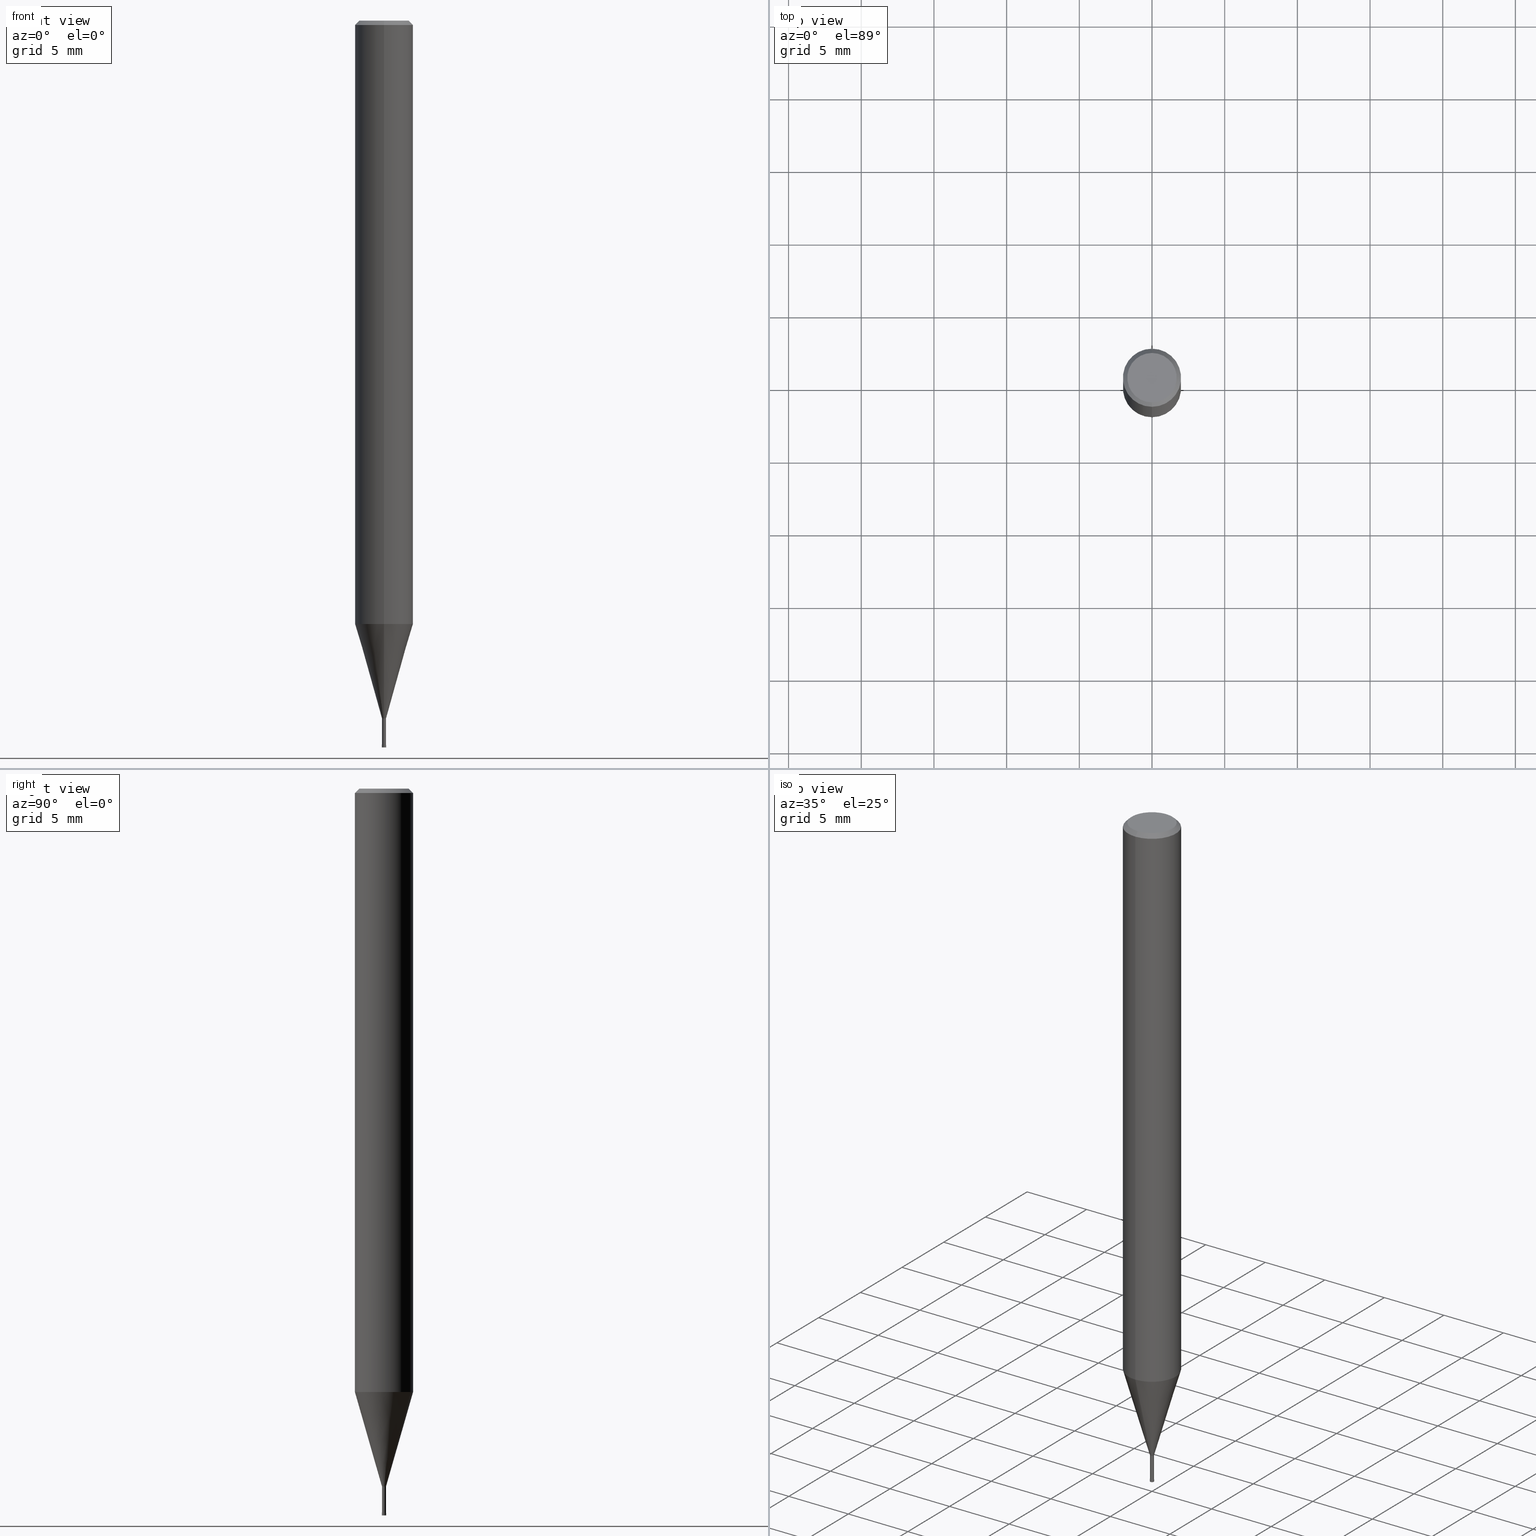
[diagram: canonical four-view strip — front | top / right | iso, engineering-drawing reading convention]
A machine part, canonical four-view strip (front | top / right | iso — engineering-drawing reading convention). The complete STEP part file that produces these views, byte-faithful:
ISO-10303-21;
HEADER;
FILE_DESCRIPTION(('no description'),'unknown implementation level');
FILE_NAME('HLRS4003-002-020-Huellk.stp','  ',('CIMSOURCE GmbH'),('CADClick - KiM GmbH - www.kimweb.de'),'unknown preprocess','ACIS','unknown authorization');
FILE_SCHEMA(('automotive_design'));
ENDSEC;
DATA;
#1=MECHANICAL_DESIGN_GEOMETRIC_PRESENTATION_REPRESENTATION(' ',(#14,#15,#16,#17,#18,#19,#20,#21,#22,#23,#24,#25,#26,#27,#28,#29,#30,#31,#32,#33,#34,#35,#36,#37,#38,#39,#40,#41,#42,#43,#44,#45,#46,#47,#48,#49,#50,#51,#52,#53,#54,#55,#56,#57,#58,#59,#60,#61,#62,#63,#64,#65,#66,#67,#68,#69,#70,#71,#72,#73,#74,#75,#76,#77,#78,#79,#80,#81,#82,#83,#84,#85,#86,#87,#88,#89,#90,#91,#92,#93,#94,#95,#96,#97,#98,#99,#100,#101,#102,#103,#104,#105,#106,#107,#108,#109,#110,#111,#112,#113,#114,#115,#116,#117,#118,#119,#120,#121),#10);
#2=PRODUCT_DEFINITION_CONTEXT('',#122,'design');
#3=APPLICATION_PROTOCOL_DEFINITION('INTERNATIONAL STANDARD','automotive_design',1994,#122);
#4=PRODUCT_CATEGORY_RELATIONSHIP('NONE','NONE',#123,#124);
#5=SHAPE_DEFINITION_REPRESENTATION(#125,#126);
#6=PRODUCT_DEFINITION_CONTEXT('',#127,'design');
#7=APPLICATION_PROTOCOL_DEFINITION('INTERNATIONAL STANDARD','automotive_design',1994,#127);
#8=PRODUCT_CATEGORY_RELATIONSHIP('NONE','NONE',#128,#129);
#9=SHAPE_DEFINITION_REPRESENTATION(#130,#131);
#10= (GEOMETRIC_REPRESENTATION_CONTEXT(3)GLOBAL_UNCERTAINTY_ASSIGNED_CONTEXT((#134))GLOBAL_UNIT_ASSIGNED_CONTEXT((#136,#137,#138))REPRESENTATION_CONTEXT('NONE','WORKSPACE'));
#14=STYLED_ITEM('',(#140),#141);
#15=STYLED_ITEM('',(#142),#143);
#16=STYLED_ITEM('',(#144),#145);
#17=STYLED_ITEM('',(#146),#147);
#18=STYLED_ITEM('',(#148),#149);
#19=STYLED_ITEM('',(#150),#151);
#20=STYLED_ITEM('',(#152),#153);
#21=STYLED_ITEM('',(#154),#155);
#22=STYLED_ITEM('',(#156),#157);
#23=STYLED_ITEM('',(#158),#159);
#24=STYLED_ITEM('',(#160),#161);
#25=STYLED_ITEM('',(#162),#163);
#26=STYLED_ITEM('',(#164),#165);
#27=STYLED_ITEM('',(#166),#167);
#28=STYLED_ITEM('',(#168),#169);
#29=STYLED_ITEM('',(#170),#171);
#30=STYLED_ITEM('',(#172),#173);
#31=STYLED_ITEM('',(#174),#175);
#32=STYLED_ITEM('',(#176),#177);
#33=STYLED_ITEM('',(#178),#179);
#34=STYLED_ITEM('',(#180),#181);
#35=STYLED_ITEM('',(#182),#183);
#36=STYLED_ITEM('',(#184),#185);
#37=STYLED_ITEM('',(#186),#187);
#38=STYLED_ITEM('',(#188),#189);
#39=STYLED_ITEM('',(#190),#191);
#40=STYLED_ITEM('',(#192),#193);
#41=STYLED_ITEM('',(#194),#195);
#42=STYLED_ITEM('',(#196),#197);
#43=STYLED_ITEM('',(#198),#199);
#44=STYLED_ITEM('',(#200),#201);
#45=STYLED_ITEM('',(#202),#203);
#46=STYLED_ITEM('',(#204),#205);
#47=STYLED_ITEM('',(#206),#207);
#48=STYLED_ITEM('',(#208),#209);
#49=STYLED_ITEM('',(#210),#211);
#50=STYLED_ITEM('',(#212),#213);
#51=STYLED_ITEM('',(#214),#215);
#52=STYLED_ITEM('',(#216),#217);
#53=STYLED_ITEM('',(#218),#219);
#54=STYLED_ITEM('',(#220),#221);
#55=STYLED_ITEM('',(#222),#223);
#56=STYLED_ITEM('',(#224),#225);
#57=STYLED_ITEM('',(#226),#227);
#58=STYLED_ITEM('',(#228),#229);
#59=STYLED_ITEM('',(#230),#231);
#60=STYLED_ITEM('',(#232),#233);
#61=STYLED_ITEM('',(#234),#235);
#62=STYLED_ITEM('',(#236),#237);
#63=STYLED_ITEM('',(#238),#239);
#64=STYLED_ITEM('',(#240),#241);
#65=STYLED_ITEM('',(#242),#243);
#66=STYLED_ITEM('',(#244),#245);
#67=STYLED_ITEM('',(#246),#247);
#68=STYLED_ITEM('',(#248),#249);
#69=STYLED_ITEM('',(#250),#251);
#70=STYLED_ITEM('',(#252),#253);
#71=STYLED_ITEM('',(#254),#255);
#72=STYLED_ITEM('',(#256),#257);
#73=STYLED_ITEM('',(#258),#259);
#74=STYLED_ITEM('',(#260),#261);
#75=STYLED_ITEM('',(#262),#263);
#76=STYLED_ITEM('',(#264),#265);
#77=STYLED_ITEM('',(#266),#267);
#78=STYLED_ITEM('',(#268),#269);
#79=STYLED_ITEM('',(#270),#271);
#80=STYLED_ITEM('',(#272),#273);
#81=STYLED_ITEM('',(#274),#275);
#82=STYLED_ITEM('',(#276),#277);
#83=STYLED_ITEM('',(#278),#279);
#84=STYLED_ITEM('',(#280),#281);
#85=STYLED_ITEM('',(#282),#283);
#86=STYLED_ITEM('',(#284),#285);
#87=STYLED_ITEM('',(#286),#287);
#88=STYLED_ITEM('',(#288),#289);
#89=STYLED_ITEM('',(#290),#291);
#90=STYLED_ITEM('',(#292),#293);
#91=STYLED_ITEM('',(#294),#295);
#92=STYLED_ITEM('',(#296),#297);
#93=STYLED_ITEM('',(#298),#299);
#94=STYLED_ITEM('',(#300),#301);
#95=STYLED_ITEM('',(#302),#303);
#96=STYLED_ITEM('',(#304),#305);
#97=STYLED_ITEM('',(#306),#307);
#98=STYLED_ITEM('',(#308),#309);
#99=STYLED_ITEM('',(#310),#311);
#100=STYLED_ITEM('',(#312),#313);
#101=STYLED_ITEM('',(#314),#315);
#102=STYLED_ITEM('',(#316),#317);
#103=STYLED_ITEM('',(#318),#319);
#104=STYLED_ITEM('',(#320),#321);
#105=STYLED_ITEM('',(#322),#323);
#106=STYLED_ITEM('',(#324),#325);
#107=STYLED_ITEM('',(#326),#327);
#108=STYLED_ITEM('',(#328),#329);
#109=STYLED_ITEM('',(#330),#331);
#110=STYLED_ITEM('',(#332),#333);
#111=STYLED_ITEM('',(#334),#335);
#112=STYLED_ITEM('',(#336),#337);
#113=STYLED_ITEM('',(#338),#339);
#114=STYLED_ITEM('',(#340),#341);
#115=STYLED_ITEM('',(#342),#343);
#116=STYLED_ITEM('',(#344),#345);
#117=STYLED_ITEM('',(#346),#347);
#118=STYLED_ITEM('',(#348),#349);
#119=STYLED_ITEM('',(#350),#351);
#120=STYLED_ITEM('',(#352),#353);
#121=STYLED_ITEM('',(#354),#355);
#122=APPLICATION_CONTEXT(' ');
#123=PRODUCT_CATEGORY('part','NONE');
#124=PRODUCT_RELATED_PRODUCT_CATEGORY('detail',' ',(#356));
#125=PRODUCT_DEFINITION_SHAPE('NONE','NONE',#357);
#126=ADVANCED_BREP_SHAPE_REPRESENTATION('1',(#331,#358),#10);
#127=APPLICATION_CONTEXT(' ');
#128=PRODUCT_CATEGORY('part','NONE');
#129=PRODUCT_RELATED_PRODUCT_CATEGORY('detail',' ',(#359));
#130=PRODUCT_DEFINITION_SHAPE('NONE','NONE',#360);
#131=ADVANCED_BREP_SHAPE_REPRESENTATION('2',(#341,#361),#10);
#134=UNCERTAINTY_MEASURE_WITH_UNIT(LENGTH_MEASURE(1.0E-006),#136,'','');
#136= (CONVERSION_BASED_UNIT('MILLIMETRE',#364)LENGTH_UNIT()NAMED_UNIT(#367));
#137= (NAMED_UNIT(#369)PLANE_ANGLE_UNIT()SI_UNIT($,.RADIAN.));
#138= (NAMED_UNIT(#369)SOLID_ANGLE_UNIT()SI_UNIT($,.STERADIAN.));
#140=PRESENTATION_STYLE_ASSIGNMENT((#375));
#141=EDGE_CURVE('',#301,#337,#376,.T.);
#142=PRESENTATION_STYLE_ASSIGNMENT((#377));
#143=EDGE_CURVE('',#349,#253,#378,.T.);
#144=PRESENTATION_STYLE_ASSIGNMENT((#379));
#145=ADVANCED_FACE('',(#380,#381),#382,.T.);
#146=PRESENTATION_STYLE_ASSIGNMENT((#383));
#147=VERTEX_POINT('',#384);
#148=PRESENTATION_STYLE_ASSIGNMENT((#385));
#149=EDGE_CURVE('',#265,#317,#386,.T.);
#150=PRESENTATION_STYLE_ASSIGNMENT((#387));
#151=VERTEX_POINT('',#388);
#152=PRESENTATION_STYLE_ASSIGNMENT((#389));
#153=EDGE_CURVE('',#259,#277,#390,.T.);
#154=PRESENTATION_STYLE_ASSIGNMENT((#391));
#155=VERTEX_POINT('',#392);
#156=PRESENTATION_STYLE_ASSIGNMENT((#393));
#157=EDGE_CURVE('',#317,#299,#394,.T.);
#158=PRESENTATION_STYLE_ASSIGNMENT((#395));
#159=ADVANCED_FACE('',(#396),#397,.F.);
#160=PRESENTATION_STYLE_ASSIGNMENT((#398));
#161=VERTEX_POINT('',#399);
#162=PRESENTATION_STYLE_ASSIGNMENT((#400));
#163=EDGE_CURVE('',#327,#289,#401,.T.);
#164=PRESENTATION_STYLE_ASSIGNMENT((#402));
#165=EDGE_CURVE('',#283,#235,#403,.T.);
#166=PRESENTATION_STYLE_ASSIGNMENT((#404));
#167=EDGE_CURVE('',#147,#161,#405,.T.);
#168=PRESENTATION_STYLE_ASSIGNMENT((#406));
#169=EDGE_CURVE('',#259,#337,#407,.T.);
#170=PRESENTATION_STYLE_ASSIGNMENT((#408));
#171=EDGE_CURVE('',#345,#227,#409,.T.);
#172=PRESENTATION_STYLE_ASSIGNMENT((#410));
#173=EDGE_CURVE('',#265,#323,#411,.T.);
#174=PRESENTATION_STYLE_ASSIGNMENT((#412));
#175=EDGE_CURVE('',#155,#227,#413,.T.);
#176=PRESENTATION_STYLE_ASSIGNMENT((#414));
#177=EDGE_CURVE('',#299,#261,#415,.T.);
#178=PRESENTATION_STYLE_ASSIGNMENT((#416));
#179=ADVANCED_FACE('',(#417),#418,.T.);
#180=PRESENTATION_STYLE_ASSIGNMENT((#419));
#181=EDGE_CURVE('',#215,#317,#420,.T.);
#182=PRESENTATION_STYLE_ASSIGNMENT((#421));
#183=EDGE_CURVE('',#161,#349,#422,.T.);
#184=PRESENTATION_STYLE_ASSIGNMENT((#423));
#185=EDGE_CURVE('',#349,#161,#424,.T.);
#186=PRESENTATION_STYLE_ASSIGNMENT((#425));
#187=ADVANCED_FACE('',(#426),#427,.T.);
#188=PRESENTATION_STYLE_ASSIGNMENT((#428));
#189=EDGE_CURVE('',#289,#327,#429,.T.);
#190=PRESENTATION_STYLE_ASSIGNMENT((#430));
#191=EDGE_CURVE('',#209,#249,#431,.T.);
#192=PRESENTATION_STYLE_ASSIGNMENT((#432));
#193=ADVANCED_FACE('',(#433),#434,.T.);
#194=PRESENTATION_STYLE_ASSIGNMENT((#435));
#195=ADVANCED_FACE('',(#436),#437,.F.);
#196=PRESENTATION_STYLE_ASSIGNMENT((#438));
#197=EDGE_CURVE('',#253,#147,#439,.T.);
#198=PRESENTATION_STYLE_ASSIGNMENT((#440));
#199=ADVANCED_FACE('',(#441),#442,.T.);
#200=PRESENTATION_STYLE_ASSIGNMENT((#443));
#201=EDGE_CURVE('',#161,#151,#444,.T.);
#202=PRESENTATION_STYLE_ASSIGNMENT((#445));
#203=ADVANCED_FACE('',(#446,#447),#448,.T.);
#204=PRESENTATION_STYLE_ASSIGNMENT((#449));
#205=ADVANCED_FACE('',(#450),#451,.F.);
#206=PRESENTATION_STYLE_ASSIGNMENT((#452));
#207=ADVANCED_FACE('',(#453),#454,.T.);
#208=PRESENTATION_STYLE_ASSIGNMENT((#455));
#209=VERTEX_POINT('',#456);
#210=PRESENTATION_STYLE_ASSIGNMENT((#457));
#211=EDGE_CURVE('',#337,#259,#458,.T.);
#212=PRESENTATION_STYLE_ASSIGNMENT((#459));
#213=EDGE_CURVE('',#353,#155,#460,.T.);
#214=PRESENTATION_STYLE_ASSIGNMENT((#461));
#215=VERTEX_POINT('',#462);
#216=PRESENTATION_STYLE_ASSIGNMENT((#463));
#217=EDGE_CURVE('',#215,#323,#464,.T.);
#218=PRESENTATION_STYLE_ASSIGNMENT((#465));
#219=ADVANCED_FACE('',(#466),#467,.T.);
#220=PRESENTATION_STYLE_ASSIGNMENT((#468));
#221=VERTEX_POINT('',#469);
#222=PRESENTATION_STYLE_ASSIGNMENT((#470));
#223=VERTEX_POINT('',#471);
#224=PRESENTATION_STYLE_ASSIGNMENT((#472));
#225=EDGE_CURVE('',#345,#223,#473,.T.);
#226=PRESENTATION_STYLE_ASSIGNMENT((#474));
#227=VERTEX_POINT('',#475);
#228=PRESENTATION_STYLE_ASSIGNMENT((#476));
#229=ADVANCED_FACE('',(#477),#478,.T.);
#230=PRESENTATION_STYLE_ASSIGNMENT((#479));
#231=ADVANCED_FACE('',(#480),#481,.T.);
#232=PRESENTATION_STYLE_ASSIGNMENT((#482));
#233=ADVANCED_FACE('',(#483),#484,.T.);
#234=PRESENTATION_STYLE_ASSIGNMENT((#485));
#235=VERTEX_POINT('',#486);
#236=PRESENTATION_STYLE_ASSIGNMENT((#487));
#237=ADVANCED_FACE('',(#488),#489,.T.);
#238=PRESENTATION_STYLE_ASSIGNMENT((#490));
#239=ADVANCED_FACE('',(#491),#492,.T.);
#240=PRESENTATION_STYLE_ASSIGNMENT((#493));
#241=EDGE_CURVE('',#337,#249,#494,.T.);
#242=PRESENTATION_STYLE_ASSIGNMENT((#495));
#243=EDGE_CURVE('',#283,#327,#496,.T.);
#244=PRESENTATION_STYLE_ASSIGNMENT((#497));
#245=EDGE_CURVE('',#223,#155,#498,.T.);
#246=PRESENTATION_STYLE_ASSIGNMENT((#499));
#247=ADVANCED_FACE('',(#500,#501),#502,.T.);
#248=PRESENTATION_STYLE_ASSIGNMENT((#503));
#249=VERTEX_POINT('',#504);
#250=PRESENTATION_STYLE_ASSIGNMENT((#505));
#251=EDGE_CURVE('',#323,#215,#506,.T.);
#252=PRESENTATION_STYLE_ASSIGNMENT((#507));
#253=VERTEX_POINT('',#508);
#254=PRESENTATION_STYLE_ASSIGNMENT((#509));
#255=EDGE_CURVE('',#223,#297,#510,.T.);
#256=PRESENTATION_STYLE_ASSIGNMENT((#511));
#257=EDGE_CURVE('',#287,#349,#512,.T.);
#258=PRESENTATION_STYLE_ASSIGNMENT((#513));
#259=VERTEX_POINT('',#514);
#260=PRESENTATION_STYLE_ASSIGNMENT((#515));
#261=VERTEX_POINT('',#516);
#262=PRESENTATION_STYLE_ASSIGNMENT((#517));
#263=ADVANCED_FACE('',(#518),#519,.F.);
#264=PRESENTATION_STYLE_ASSIGNMENT((#520));
#265=VERTEX_POINT('',#521);
#266=PRESENTATION_STYLE_ASSIGNMENT((#522));
#267=EDGE_CURVE('',#155,#223,#523,.T.);
#268=PRESENTATION_STYLE_ASSIGNMENT((#524));
#269=VERTEX_POINT('',#525);
#270=PRESENTATION_STYLE_ASSIGNMENT((#526));
#271=ADVANCED_FACE('',(#527),#528,.T.);
#272=PRESENTATION_STYLE_ASSIGNMENT((#529));
#273=EDGE_CURVE('',#261,#265,#530,.T.);
#274=PRESENTATION_STYLE_ASSIGNMENT((#531));
#275=EDGE_CURVE('',#283,#221,#532,.T.);
#276=PRESENTATION_STYLE_ASSIGNMENT((#533));
#277=VERTEX_POINT('',#534);
#278=PRESENTATION_STYLE_ASSIGNMENT((#535));
#279=EDGE_CURVE('',#301,#277,#536,.T.);
#280=PRESENTATION_STYLE_ASSIGNMENT((#537));
#281=ADVANCED_FACE('',(#538),#539,.T.);
#282=PRESENTATION_STYLE_ASSIGNMENT((#540));
#283=VERTEX_POINT('',#541);
#284=PRESENTATION_STYLE_ASSIGNMENT((#542));
#285=EDGE_CURVE('',#317,#265,#543,.T.);
#286=PRESENTATION_STYLE_ASSIGNMENT((#544));
#287=VERTEX_POINT('',#545);
#288=PRESENTATION_STYLE_ASSIGNMENT((#546));
#289=VERTEX_POINT('',#547);
#290=PRESENTATION_STYLE_ASSIGNMENT((#548));
#291=ADVANCED_FACE('',(#549,#550),#551,.T.);
#292=PRESENTATION_STYLE_ASSIGNMENT((#552));
#293=EDGE_CURVE('',#297,#353,#553,.T.);
#294=PRESENTATION_STYLE_ASSIGNMENT((#554));
#295=EDGE_CURVE('',#269,#221,#555,.T.);
#296=PRESENTATION_STYLE_ASSIGNMENT((#556));
#297=VERTEX_POINT('',#557);
#298=PRESENTATION_STYLE_ASSIGNMENT((#558));
#299=VERTEX_POINT('',#559);
#300=PRESENTATION_STYLE_ASSIGNMENT((#560));
#301=VERTEX_POINT('',#561);
#302=PRESENTATION_STYLE_ASSIGNMENT((#562));
#303=ADVANCED_FACE('',(#563),#564,.T.);
#304=PRESENTATION_STYLE_ASSIGNMENT((#565));
#305=EDGE_CURVE('',#249,#209,#566,.T.);
#306=PRESENTATION_STYLE_ASSIGNMENT((#567));
#307=EDGE_CURVE('',#277,#301,#568,.T.);
#308=PRESENTATION_STYLE_ASSIGNMENT((#569));
#309=EDGE_CURVE('',#269,#235,#570,.T.);
#310=PRESENTATION_STYLE_ASSIGNMENT((#571));
#311=EDGE_CURVE('',#221,#283,#572,.T.);
#312=PRESENTATION_STYLE_ASSIGNMENT((#573));
#313=EDGE_CURVE('',#289,#221,#574,.T.);
#314=PRESENTATION_STYLE_ASSIGNMENT((#575));
#315=EDGE_CURVE('',#227,#345,#576,.T.);
#316=PRESENTATION_STYLE_ASSIGNMENT((#577));
#317=VERTEX_POINT('',#578);
#318=PRESENTATION_STYLE_ASSIGNMENT((#579));
#319=EDGE_CURVE('',#147,#253,#580,.T.);
#320=PRESENTATION_STYLE_ASSIGNMENT((#581));
#321=EDGE_CURVE('',#235,#269,#582,.T.);
#322=PRESENTATION_STYLE_ASSIGNMENT((#583));
#323=VERTEX_POINT('',#584);
#324=PRESENTATION_STYLE_ASSIGNMENT((#585));
#325=ADVANCED_FACE('',(#586),#587,.T.);
#326=PRESENTATION_STYLE_ASSIGNMENT((#588));
#327=VERTEX_POINT('',#589);
#328=PRESENTATION_STYLE_ASSIGNMENT((#590));
#329=ADVANCED_FACE('',(#591),#592,.T.);
#330=PRESENTATION_STYLE_ASSIGNMENT((#593));
#331=MANIFOLD_SOLID_BREP('1',#594);
#332=PRESENTATION_STYLE_ASSIGNMENT((#595));
#333=EDGE_CURVE('',#353,#297,#596,.T.);
#334=PRESENTATION_STYLE_ASSIGNMENT((#597));
#335=EDGE_CURVE('',#261,#299,#598,.T.);
#336=PRESENTATION_STYLE_ASSIGNMENT((#599));
#337=VERTEX_POINT('',#600);
#338=PRESENTATION_STYLE_ASSIGNMENT((#601));
#339=ADVANCED_FACE('',(#602),#603,.T.);
#340=PRESENTATION_STYLE_ASSIGNMENT((#604));
#341=MANIFOLD_SOLID_BREP('2',#605);
#342=PRESENTATION_STYLE_ASSIGNMENT((#606));
#343=ADVANCED_FACE('',(#607),#608,.T.);
#344=PRESENTATION_STYLE_ASSIGNMENT((#609));
#345=VERTEX_POINT('',#610);
#346=PRESENTATION_STYLE_ASSIGNMENT((#611));
#347=EDGE_CURVE('',#209,#259,#612,.T.);
#348=PRESENTATION_STYLE_ASSIGNMENT((#613));
#349=VERTEX_POINT('',#614);
#350=PRESENTATION_STYLE_ASSIGNMENT((#615));
#351=EDGE_CURVE('',#151,#287,#616,.T.);
#352=PRESENTATION_STYLE_ASSIGNMENT((#617));
#353=VERTEX_POINT('',#618);
#354=PRESENTATION_STYLE_ASSIGNMENT((#619));
#355=EDGE_CURVE('',#287,#151,#620,.T.);
#356=PRODUCT('1','1','PART-1-DESC',(#621));
#357=PRODUCT_DEFINITION('NONE','NONE',#622,#2);
#358=AXIS2_PLACEMENT_3D('',#623,#624,#625);
#359=PRODUCT('2','2','PART-2-DESC',(#626));
#360=PRODUCT_DEFINITION('NONE','NONE',#627,#6);
#361=AXIS2_PLACEMENT_3D('',#628,#629,#630);
#364=LENGTH_MEASURE_WITH_UNIT(LENGTH_MEASURE(1.0),#631);
#367=DIMENSIONAL_EXPONENTS(1.0,0.0,0.0,0.0,0.0,0.0,0.0);
#369=DIMENSIONAL_EXPONENTS(0.0,0.0,0.0,0.0,0.0,0.0,0.0);
#375=CURVE_STYLE('',#632,POSITIVE_LENGTH_MEASURE(1.0E-006),#633);
#376=LINE('',#634,#635);
#377=CURVE_STYLE('',#636,POSITIVE_LENGTH_MEASURE(1.0E-006),#637);
#378=LINE('',#638,#639);
#379=SURFACE_STYLE_USAGE(.BOTH.,#640);
#380=FACE_OUTER_BOUND('',#641,.T.);
#381=FACE_BOUND('',#642,.T.);
#382=PLANE('',#643);
#383=POINT_STYLE(' ',#644,POSITIVE_LENGTH_MEASURE(1.0E-006),#645);
#384=CARTESIAN_POINT('',(0.0,1.7,0.00999999999999801));
#385=CURVE_STYLE('',#646,POSITIVE_LENGTH_MEASURE(1.0E-006),#647);
#386=CIRCLE('',#648,0.0675);
#387=POINT_STYLE(' ',#649,POSITIVE_LENGTH_MEASURE(1.0E-006),#650);
#388=CARTESIAN_POINT('',(0.0,2.0,-41.503));
#389=CURVE_STYLE('',#651,POSITIVE_LENGTH_MEASURE(1.0E-006),#652);
#390=LINE('',#653,#654);
#391=POINT_STYLE(' ',#655,POSITIVE_LENGTH_MEASURE(1.0E-006),#656);
#392=CARTESIAN_POINT('',(0.0,0.13995,-47.99));
#393=CURVE_STYLE('',#657,POSITIVE_LENGTH_MEASURE(1.0E-006),#658);
#394=LINE('',#659,#660);
#395=SURFACE_STYLE_USAGE(.BOTH.,#661);
#396=FACE_OUTER_BOUND('',#662,.T.);
#397=CYLINDRICAL_SURFACE('',#663,0.0675);
#398=POINT_STYLE(' ',#664,POSITIVE_LENGTH_MEASURE(1.0E-006),#665);
#399=CARTESIAN_POINT('',(0.0,2.0,-0.289999999999999));
#400=CURVE_STYLE('',#666,POSITIVE_LENGTH_MEASURE(1.0E-006),#667);
#401=CIRCLE('',#668,0.13);
#402=CURVE_STYLE('',#669,POSITIVE_LENGTH_MEASURE(1.0E-006),#670);
#403=LINE('',#671,#672);
#404=CURVE_STYLE('',#673,POSITIVE_LENGTH_MEASURE(1.0E-006),#674);
#405=LINE('',#675,#676);
#406=CURVE_STYLE('',#677,POSITIVE_LENGTH_MEASURE(1.0E-006),#678);
#407=CIRCLE('',#679,0.0675);
#408=CURVE_STYLE('',#680,POSITIVE_LENGTH_MEASURE(1.0E-006),#681);
#409=CIRCLE('',#682,0.13995);
#410=CURVE_STYLE('',#683,POSITIVE_LENGTH_MEASURE(1.0E-006),#684);
#411=LINE('',#685,#686);
#412=CURVE_STYLE('',#687,POSITIVE_LENGTH_MEASURE(1.0E-006),#688);
#413=LINE('',#689,#690);
#414=CURVE_STYLE('',#691,POSITIVE_LENGTH_MEASURE(1.0E-006),#692);
#415=CIRCLE('',#693,0.1449);
#416=SURFACE_STYLE_USAGE(.BOTH.,#694);
#417=FACE_OUTER_BOUND('',#695,.T.);
#418=CONICAL_SURFACE('',#696,1.06995,0.27923596926092);
#419=CURVE_STYLE('',#697,POSITIVE_LENGTH_MEASURE(1.0E-006),#698);
#420=LINE('',#699,#700);
#421=CURVE_STYLE('',#701,POSITIVE_LENGTH_MEASURE(1.0E-006),#702);
#422=CIRCLE('',#703,2.0);
#423=CURVE_STYLE('',#704,POSITIVE_LENGTH_MEASURE(1.0E-006),#705);
#424=CIRCLE('',#706,2.0);
#425=SURFACE_STYLE_USAGE(.BOTH.,#707);
#426=FACE_OUTER_BOUND('',#708,.T.);
#427=CONICAL_SURFACE('',#709,1.06995,0.27923596926092);
#428=CURVE_STYLE('',#710,POSITIVE_LENGTH_MEASURE(1.0E-006),#711);
#429=CIRCLE('',#712,0.13);
#430=CURVE_STYLE('',#713,POSITIVE_LENGTH_MEASURE(1.0E-006),#714);
#431=CIRCLE('',#715,0.14495);
#432=SURFACE_STYLE_USAGE(.BOTH.,#716);
#433=FACE_OUTER_BOUND('',#717,.T.);
#434=TOROIDAL_SURFACE('',#718,0.13,0.0199999999999999);
#435=SURFACE_STYLE_USAGE(.BOTH.,#719);
#436=FACE_OUTER_BOUND('',#720,.T.);
#437=CONICAL_SURFACE('',#721,0.1062,1.44230912436268);
#438=CURVE_STYLE('',#722,POSITIVE_LENGTH_MEASURE(1.0E-006),#723);
#439=CIRCLE('',#724,1.7);
#440=SURFACE_STYLE_USAGE(.BOTH.,#725);
#441=FACE_OUTER_BOUND('',#726,.T.);
#442=CONICAL_SURFACE('',#727,1.85,0.785398163397453);
#443=CURVE_STYLE('',#728,POSITIVE_LENGTH_MEASURE(1.0E-006),#729);
#444=LINE('',#730,#731);
#445=SURFACE_STYLE_USAGE(.BOTH.,#732);
#446=FACE_BOUND('',#733,.T.);
#447=FACE_OUTER_BOUND('',#734,.T.);
#448=PLANE('',#735);
#449=SURFACE_STYLE_USAGE(.BOTH.,#736);
#450=FACE_OUTER_BOUND('',#737,.T.);
#451=CYLINDRICAL_SURFACE('',#738,0.0675);
#452=SURFACE_STYLE_USAGE(.BOTH.,#739);
#453=FACE_OUTER_BOUND('',#740,.T.);
#454=PLANE('',#741);
#455=POINT_STYLE(' ',#742,POSITIVE_LENGTH_MEASURE(1.0E-006),#743);
#456=CARTESIAN_POINT('',(0.0,0.14495,-49.81));
#457=CURVE_STYLE('',#744,POSITIVE_LENGTH_MEASURE(1.0E-006),#745);
#458=CIRCLE('',#746,0.0675);
#459=CURVE_STYLE('',#747,POSITIVE_LENGTH_MEASURE(1.0E-006),#748);
#460=LINE('',#749,#750);
#461=POINT_STYLE(' ',#751,POSITIVE_LENGTH_MEASURE(1.0E-006),#752);
#462=CARTESIAN_POINT('',(8.26609288830105E-018,-0.0675,-49.99));
#463=CURVE_STYLE('',#753,POSITIVE_LENGTH_MEASURE(1.0E-006),#754);
#464=CIRCLE('',#755,0.0675);
#465=SURFACE_STYLE_USAGE(.BOTH.,#756);
#466=FACE_OUTER_BOUND('',#757,.T.);
#467=CYLINDRICAL_SURFACE('',#758,0.0675);
#468=POINT_STYLE(' ',#759,POSITIVE_LENGTH_MEASURE(1.0E-006),#760);
#469=CARTESIAN_POINT('',(0.0,0.15,-49.97));
#470=POINT_STYLE(' ',#761,POSITIVE_LENGTH_MEASURE(1.0E-006),#762);
#471=CARTESIAN_POINT('',(1.71383659217442E-017,-0.13995,-47.99));
#472=CURVE_STYLE('',#763,POSITIVE_LENGTH_MEASURE(1.0E-006),#764);
#473=LINE('',#765,#766);
#474=POINT_STYLE(' ',#767,POSITIVE_LENGTH_MEASURE(1.0E-006),#768);
#475=CARTESIAN_POINT('',(0.0,0.13995,-49.81));
#476=SURFACE_STYLE_USAGE(.BOTH.,#769);
#477=FACE_OUTER_BOUND('',#770,.T.);
#478=CONICAL_SURFACE('',#771,0.14995,0.000624999918619742);
#479=SURFACE_STYLE_USAGE(.BOTH.,#772);
#480=FACE_OUTER_BOUND('',#773,.T.);
#481=CYLINDRICAL_SURFACE('',#774,0.13995);
#482=SURFACE_STYLE_USAGE(.BOTH.,#775);
#483=FACE_OUTER_BOUND('',#776,.T.);
#484=CONICAL_SURFACE('',#777,0.14995,0.000624999918619742);
#485=POINT_STYLE(' ',#778,POSITIVE_LENGTH_MEASURE(1.0E-006),#779);
#486=CARTESIAN_POINT('',(1.83568492437974E-017,-0.1499,-49.81));
#487=SURFACE_STYLE_USAGE(.BOTH.,#780);
#488=FACE_OUTER_BOUND('',#781,.T.);
#489=CYLINDRICAL_SURFACE('',#782,0.0675);
#490=SURFACE_STYLE_USAGE(.BOTH.,#783);
#491=FACE_OUTER_BOUND('',#784,.T.);
#492=CYLINDRICAL_SURFACE('',#785,2.0);
#493=CURVE_STYLE('',#786,POSITIVE_LENGTH_MEASURE(1.0E-006),#787);
#494=LINE('',#788,#789);
#495=CURVE_STYLE('',#790,POSITIVE_LENGTH_MEASURE(1.0E-006),#791);
#496=CIRCLE('',#792,0.0199999999999999);
#497=CURVE_STYLE('',#793,POSITIVE_LENGTH_MEASURE(1.0E-006),#794);
#498=CIRCLE('',#795,0.13995);
#499=SURFACE_STYLE_USAGE(.BOTH.,#796);
#500=FACE_OUTER_BOUND('',#797,.T.);
#501=FACE_BOUND('',#798,.T.);
#502=PLANE('',#799);
#503=POINT_STYLE(' ',#800,POSITIVE_LENGTH_MEASURE(1.0E-006),#801);
#504=CARTESIAN_POINT('',(1.77506690986554E-017,-0.14495,-49.81));
#505=CURVE_STYLE('',#802,POSITIVE_LENGTH_MEASURE(1.0E-006),#803);
#506=CIRCLE('',#804,0.0675);
#507=POINT_STYLE(' ',#805,POSITIVE_LENGTH_MEASURE(1.0E-006),#806);
#508=CARTESIAN_POINT('',(2.08183080149804E-016,-1.7,0.00999999999999801));
#509=CURVE_STYLE('',#807,POSITIVE_LENGTH_MEASURE(1.0E-006),#808);
#510=LINE('',#809,#810);
#511=CURVE_STYLE('',#811,POSITIVE_LENGTH_MEASURE(1.0E-006),#812);
#512=LINE('',#813,#814);
#513=POINT_STYLE(' ',#815,POSITIVE_LENGTH_MEASURE(1.0E-006),#816);
#514=CARTESIAN_POINT('',(0.0,0.0675,-49.82));
#515=POINT_STYLE(' ',#817,POSITIVE_LENGTH_MEASURE(1.0E-006),#818);
#516=CARTESIAN_POINT('',(0.0,0.1449,-49.81));
#517=SURFACE_STYLE_USAGE(.BOTH.,#819);
#518=FACE_OUTER_BOUND('',#820,.T.);
#519=CONICAL_SURFACE('',#821,0.1062,1.44230912436268);
#520=POINT_STYLE(' ',#822,POSITIVE_LENGTH_MEASURE(1.0E-006),#823);
#521=CARTESIAN_POINT('',(0.0,0.0675,-49.82));
#522=CURVE_STYLE('',#824,POSITIVE_LENGTH_MEASURE(1.0E-006),#825);
#523=CIRCLE('',#826,0.13995);
#524=POINT_STYLE(' ',#827,POSITIVE_LENGTH_MEASURE(1.0E-006),#828);
#525=CARTESIAN_POINT('',(0.0,0.1499,-49.81));
#526=SURFACE_STYLE_USAGE(.BOTH.,#829);
#527=FACE_OUTER_BOUND('',#830,.T.);
#528=PLANE('',#831);
#529=CURVE_STYLE('',#832,POSITIVE_LENGTH_MEASURE(1.0E-006),#833);
#530=LINE('',#834,#835);
#531=CURVE_STYLE('',#836,POSITIVE_LENGTH_MEASURE(1.0E-006),#837);
#532=CIRCLE('',#838,0.15);
#533=POINT_STYLE(' ',#839,POSITIVE_LENGTH_MEASURE(1.0E-006),#840);
#534=CARTESIAN_POINT('',(0.0,0.0675,-49.945));
#535=CURVE_STYLE('',#841,POSITIVE_LENGTH_MEASURE(1.0E-006),#842);
#536=CIRCLE('',#843,0.0675);
#537=SURFACE_STYLE_USAGE(.BOTH.,#844);
#538=FACE_OUTER_BOUND('',#845,.T.);
#539=CONICAL_SURFACE('',#846,0.106225,1.44239116379722);
#540=POINT_STYLE(' ',#847,POSITIVE_LENGTH_MEASURE(1.0E-006),#848);
#541=CARTESIAN_POINT('',(1.83690953073357E-017,-0.15,-49.97));
#542=CURVE_STYLE('',#849,POSITIVE_LENGTH_MEASURE(1.0E-006),#850);
#543=CIRCLE('',#851,0.0675);
#544=POINT_STYLE(' ',#852,POSITIVE_LENGTH_MEASURE(1.0E-006),#853);
#545=CARTESIAN_POINT('',(2.44921270764475E-016,-2.0,-41.503));
#546=POINT_STYLE(' ',#854,POSITIVE_LENGTH_MEASURE(1.0E-006),#855);
#547=CARTESIAN_POINT('',(0.0,0.13,-49.99));
#548=SURFACE_STYLE_USAGE(.BOTH.,#856);
#549=FACE_OUTER_BOUND('',#857,.T.);
#550=FACE_BOUND('',#858,.T.);
#551=PLANE('',#859);
#552=CURVE_STYLE('',#860,POSITIVE_LENGTH_MEASURE(1.0E-006),#861);
#553=CIRCLE('',#862,1.99995);
#554=CURVE_STYLE('',#863,POSITIVE_LENGTH_MEASURE(1.0E-006),#864);
#555=LINE('',#865,#866);
#556=POINT_STYLE(' ',#867,POSITIVE_LENGTH_MEASURE(1.0E-006),#868);
#557=CARTESIAN_POINT('',(2.44915147732706E-016,-1.99995,-41.503));
#558=POINT_STYLE(' ',#869,POSITIVE_LENGTH_MEASURE(1.0E-006),#870);
#559=CARTESIAN_POINT('',(1.77445460668862E-017,-0.1449,-49.81));
#560=POINT_STYLE(' ',#871,POSITIVE_LENGTH_MEASURE(1.0E-006),#872);
#561=CARTESIAN_POINT('',(8.26609288830105E-018,-0.0675,-49.945));
#562=SURFACE_STYLE_USAGE(.BOTH.,#873);
#563=FACE_OUTER_BOUND('',#874,.T.);
#564=CYLINDRICAL_SURFACE('',#875,0.13995);
#565=CURVE_STYLE('',#876,POSITIVE_LENGTH_MEASURE(1.0E-006),#877);
#566=CIRCLE('',#878,0.14495);
#567=CURVE_STYLE('',#879,POSITIVE_LENGTH_MEASURE(1.0E-006),#880);
#568=CIRCLE('',#881,0.0675);
#569=CURVE_STYLE('',#882,POSITIVE_LENGTH_MEASURE(1.0E-006),#883);
#570=CIRCLE('',#884,0.1499);
#571=CURVE_STYLE('',#885,POSITIVE_LENGTH_MEASURE(1.0E-006),#886);
#572=CIRCLE('',#887,0.15);
#573=CURVE_STYLE('',#888,POSITIVE_LENGTH_MEASURE(1.0E-006),#889);
#574=CIRCLE('',#890,0.0199999999999999);
#575=CURVE_STYLE('',#891,POSITIVE_LENGTH_MEASURE(1.0E-006),#892);
#576=CIRCLE('',#893,0.13995);
#577=POINT_STYLE(' ',#894,POSITIVE_LENGTH_MEASURE(1.0E-006),#895);
#578=CARTESIAN_POINT('',(8.26609288830105E-018,-0.0675,-49.82));
#579=CURVE_STYLE('',#896,POSITIVE_LENGTH_MEASURE(1.0E-006),#897);
#580=CIRCLE('',#898,1.7);
#581=CURVE_STYLE('',#899,POSITIVE_LENGTH_MEASURE(1.0E-006),#900);
#582=CIRCLE('',#901,0.1499);
#583=POINT_STYLE(' ',#902,POSITIVE_LENGTH_MEASURE(1.0E-006),#903);
#584=CARTESIAN_POINT('',(0.0,0.0675,-49.99));
#585=SURFACE_STYLE_USAGE(.BOTH.,#904);
#586=FACE_OUTER_BOUND('',#905,.T.);
#587=CYLINDRICAL_SURFACE('',#906,2.0);
#588=POINT_STYLE(' ',#907,POSITIVE_LENGTH_MEASURE(1.0E-006),#908);
#589=CARTESIAN_POINT('',(1.59198825996909E-017,-0.13,-49.99));
#590=SURFACE_STYLE_USAGE(.BOTH.,#909);
#591=FACE_OUTER_BOUND('',#910,.T.);
#592=CONICAL_SURFACE('',#911,1.85,0.785398163397453);
#593=SURFACE_STYLE_USAGE(.BOTH.,#912);
#594=CLOSED_SHELL('',(#219,#281,#303,#179,#239,#199,#145,#271,#329,#325,#187,#231,#247,#339,#237,#207));
#595=CURVE_STYLE('',#913,POSITIVE_LENGTH_MEASURE(1.0E-006),#914);
#596=CIRCLE('',#915,1.99995);
#597=CURVE_STYLE('',#916,POSITIVE_LENGTH_MEASURE(1.0E-006),#917);
#598=CIRCLE('',#918,0.1449);
#599=POINT_STYLE(' ',#919,POSITIVE_LENGTH_MEASURE(1.0E-006),#920);
#600=CARTESIAN_POINT('',(8.26609288830105E-018,-0.0675,-49.82));
#601=SURFACE_STYLE_USAGE(.BOTH.,#921);
#602=FACE_OUTER_BOUND('',#922,.T.);
#603=CONICAL_SURFACE('',#923,0.106225,1.44239116379722);
#604=SURFACE_STYLE_USAGE(.BOTH.,#924);
#605=CLOSED_SHELL('',(#159,#343,#229,#263,#195,#291,#233,#193,#203,#205));
#606=SURFACE_STYLE_USAGE(.BOTH.,#925);
#607=FACE_OUTER_BOUND('',#926,.T.);
#608=TOROIDAL_SURFACE('',#927,0.13,0.0199999999999999);
#609=POINT_STYLE(' ',#928,POSITIVE_LENGTH_MEASURE(1.0E-006),#929);
#610=CARTESIAN_POINT('',(1.71383659217442E-017,-0.13995,-49.81));
#611=CURVE_STYLE('',#930,POSITIVE_LENGTH_MEASURE(1.0E-006),#931);
#612=LINE('',#932,#933);
#613=POINT_STYLE(' ',#934,POSITIVE_LENGTH_MEASURE(1.0E-006),#935);
#614=CARTESIAN_POINT('',(2.44921270764475E-016,-2.0,-0.289999999999999));
#615=CURVE_STYLE('',#936,POSITIVE_LENGTH_MEASURE(1.0E-006),#937);
#616=CIRCLE('',#938,2.0);
#617=POINT_STYLE(' ',#939,POSITIVE_LENGTH_MEASURE(1.0E-006),#940);
#618=CARTESIAN_POINT('',(0.0,1.99995,-41.503));
#619=CURVE_STYLE('',#941,POSITIVE_LENGTH_MEASURE(1.0E-006),#942);
#620=CIRCLE('',#943,2.0);
#621=PRODUCT_CONTEXT('',#122,'mechanical');
#622=PRODUCT_DEFINITION_FORMATION_WITH_SPECIFIED_SOURCE(' ','NONE',#356,.NOT_KNOWN.);
#623=CARTESIAN_POINT('',(0.0,0.0,0.0));
#624=DIRECTION('',(0.0,0.0,1.0));
#625=DIRECTION('',(1.0,0.0,0.0));
#626=PRODUCT_CONTEXT('',#127,'mechanical');
#627=PRODUCT_DEFINITION_FORMATION_WITH_SPECIFIED_SOURCE(' ','NONE',#359,.NOT_KNOWN.);
#628=CARTESIAN_POINT('',(0.0,0.0,0.0));
#629=DIRECTION('',(0.0,0.0,1.0));
#630=DIRECTION('',(1.0,0.0,0.0));
#631= (NAMED_UNIT(#367)LENGTH_UNIT()SI_UNIT(.MILLI.,.METRE.));
#632=DRAUGHTING_PRE_DEFINED_CURVE_FONT('continuous');
#633=COLOUR_RGB('',0.498039215803146,0.498039215803146,0.498039215803146);
#634=CARTESIAN_POINT('',(8.26609288830105E-018,-0.0675,-49.8825));
#635=VECTOR('',#945,1.0);
#636=DRAUGHTING_PRE_DEFINED_CURVE_FONT('continuous');
#637=COLOUR_RGB('',0.498039215803146,0.498039215803146,0.498039215803146);
#638=CARTESIAN_POINT('',(2.2655217545714E-016,-1.85,-0.140000000000001));
#639=VECTOR('',#946,1.0);
#640=SURFACE_SIDE_STYLE('',(#947));
#641=EDGE_LOOP('',(#948,#949));
#642=EDGE_LOOP('',(#950,#951));
#643=AXIS2_PLACEMENT_3D('',#952,#953,#954);
#644=PRE_DEFINED_MARKER('');
#645=COLOUR_RGB('',0.498039215803146,0.498039215803146,0.498039215803146);
#646=DRAUGHTING_PRE_DEFINED_CURVE_FONT('continuous');
#647=COLOUR_RGB('',0.800000011920929,0.800000011920929,0.800000011920929);
#648=AXIS2_PLACEMENT_3D('',#955,#956,#957);
#649=PRE_DEFINED_MARKER('');
#650=COLOUR_RGB('',0.498039215803146,0.498039215803146,0.498039215803146);
#651=DRAUGHTING_PRE_DEFINED_CURVE_FONT('continuous');
#652=COLOUR_RGB('',0.498039215803146,0.498039215803146,0.498039215803146);
#653=CARTESIAN_POINT('',(-8.26609288830105E-018,0.0675,-49.8825));
#654=VECTOR('',#958,1.0);
#655=PRE_DEFINED_MARKER('');
#656=COLOUR_RGB('',0.498039215803146,0.498039215803146,0.498039215803146);
#657=DRAUGHTING_PRE_DEFINED_CURVE_FONT('continuous');
#658=COLOUR_RGB('',0.800000011920929,0.800000011920929,0.800000011920929);
#659=CARTESIAN_POINT('',(1.30053194775936E-017,-0.1062,-49.815));
#660=VECTOR('',#959,1.0);
#661=SURFACE_SIDE_STYLE('',(#960));
#662=EDGE_LOOP('',(#961,#962,#963,#964));
#663=AXIS2_PLACEMENT_3D('',#965,#966,#967);
#664=PRE_DEFINED_MARKER('');
#665=COLOUR_RGB('',0.498039215803146,0.498039215803146,0.498039215803146);
#666=DRAUGHTING_PRE_DEFINED_CURVE_FONT('continuous');
#667=COLOUR_RGB('',0.800000011920929,0.800000011920929,0.800000011920929);
#668=AXIS2_PLACEMENT_3D('',#968,#969,#970);
#669=DRAUGHTING_PRE_DEFINED_CURVE_FONT('continuous');
#670=COLOUR_RGB('',0.800000011920929,0.800000011920929,0.800000011920929);
#671=CARTESIAN_POINT('',(1.83629722755665E-017,-0.14995,-49.89));
#672=VECTOR('',#971,1.0);
#673=DRAUGHTING_PRE_DEFINED_CURVE_FONT('continuous');
#674=COLOUR_RGB('',0.498039215803146,0.498039215803146,0.498039215803146);
#675=CARTESIAN_POINT('',(-2.2655217545714E-016,1.85,-0.140000000000001));
#676=VECTOR('',#972,1.0);
#677=DRAUGHTING_PRE_DEFINED_CURVE_FONT('continuous');
#678=COLOUR_RGB('',0.498039215803146,0.498039215803146,0.498039215803146);
#679=AXIS2_PLACEMENT_3D('',#973,#974,#975);
#680=DRAUGHTING_PRE_DEFINED_CURVE_FONT('continuous');
#681=COLOUR_RGB('',0.498039215803146,0.498039215803146,0.498039215803146);
#682=AXIS2_PLACEMENT_3D('',#976,#977,#978);
#683=DRAUGHTING_PRE_DEFINED_CURVE_FONT('continuous');
#684=COLOUR_RGB('',0.800000011920929,0.800000011920929,0.800000011920929);
#685=CARTESIAN_POINT('',(-8.26609288830105E-018,0.0675,-49.905));
#686=VECTOR('',#979,1.0);
#687=DRAUGHTING_PRE_DEFINED_CURVE_FONT('continuous');
#688=COLOUR_RGB('',0.498039215803146,0.498039215803146,0.498039215803146);
#689=CARTESIAN_POINT('',(-1.71383659217442E-017,0.13995,-48.9));
#690=VECTOR('',#980,1.0);
#691=DRAUGHTING_PRE_DEFINED_CURVE_FONT('continuous');
#692=COLOUR_RGB('',0.800000011920929,0.800000011920929,0.800000011920929);
#693=AXIS2_PLACEMENT_3D('',#981,#982,#983);
#694=SURFACE_SIDE_STYLE('',(#984));
#695=EDGE_LOOP('',(#985,#986,#987,#988));
#696=AXIS2_PLACEMENT_3D('',#989,#990,#991);
#697=DRAUGHTING_PRE_DEFINED_CURVE_FONT('continuous');
#698=COLOUR_RGB('',0.800000011920929,0.800000011920929,0.800000011920929);
#699=CARTESIAN_POINT('',(8.26609288830105E-018,-0.0675,-49.905));
#700=VECTOR('',#992,1.0);
#701=DRAUGHTING_PRE_DEFINED_CURVE_FONT('continuous');
#702=COLOUR_RGB('',0.498039215803146,0.498039215803146,0.498039215803146);
#703=AXIS2_PLACEMENT_3D('',#993,#994,#995);
#704=DRAUGHTING_PRE_DEFINED_CURVE_FONT('continuous');
#705=COLOUR_RGB('',0.498039215803146,0.498039215803146,0.498039215803146);
#706=AXIS2_PLACEMENT_3D('',#996,#997,#998);
#707=SURFACE_SIDE_STYLE('',(#999));
#708=EDGE_LOOP('',(#1000,#1001,#1002,#1003));
#709=AXIS2_PLACEMENT_3D('',#1004,#1005,#1006);
#710=DRAUGHTING_PRE_DEFINED_CURVE_FONT('continuous');
#711=COLOUR_RGB('',0.800000011920929,0.800000011920929,0.800000011920929);
#712=AXIS2_PLACEMENT_3D('',#1007,#1008,#1009);
#713=DRAUGHTING_PRE_DEFINED_CURVE_FONT('continuous');
#714=COLOUR_RGB('',0.498039215803146,0.498039215803146,0.498039215803146);
#715=AXIS2_PLACEMENT_3D('',#1010,#1011,#1012);
#716=SURFACE_SIDE_STYLE('',(#1013));
#717=EDGE_LOOP('',(#1014,#1015,#1016,#1017));
#718=AXIS2_PLACEMENT_3D('',#1018,#1019,#1020);
#719=SURFACE_SIDE_STYLE('',(#1021));
#720=EDGE_LOOP('',(#1022,#1023,#1024,#1025));
#721=AXIS2_PLACEMENT_3D('',#1026,#1027,#1028);
#722=DRAUGHTING_PRE_DEFINED_CURVE_FONT('continuous');
#723=COLOUR_RGB('',0.498039215803146,0.498039215803146,0.498039215803146);
#724=AXIS2_PLACEMENT_3D('',#1029,#1030,#1031);
#725=SURFACE_SIDE_STYLE('',(#1032));
#726=EDGE_LOOP('',(#1033,#1034,#1035,#1036));
#727=AXIS2_PLACEMENT_3D('',#1037,#1038,#1039);
#728=DRAUGHTING_PRE_DEFINED_CURVE_FONT('continuous');
#729=COLOUR_RGB('',0.498039215803146,0.498039215803146,0.498039215803146);
#730=CARTESIAN_POINT('',(-2.44921270764475E-016,2.0,-20.8965));
#731=VECTOR('',#1040,1.0);
#732=SURFACE_SIDE_STYLE('',(#1041));
#733=EDGE_LOOP('',(#1042,#1043));
#734=EDGE_LOOP('',(#1044,#1045));
#735=AXIS2_PLACEMENT_3D('',#1046,#1047,#1048);
#736=SURFACE_SIDE_STYLE('',(#1049));
#737=EDGE_LOOP('',(#1050,#1051,#1052,#1053));
#738=AXIS2_PLACEMENT_3D('',#1054,#1055,#1056);
#739=SURFACE_SIDE_STYLE('',(#1057));
#740=EDGE_LOOP('',(#1058,#1059));
#741=AXIS2_PLACEMENT_3D('',#1060,#1061,#1062);
#742=PRE_DEFINED_MARKER('');
#743=COLOUR_RGB('',0.498039215803146,0.498039215803146,0.498039215803146);
#744=DRAUGHTING_PRE_DEFINED_CURVE_FONT('continuous');
#745=COLOUR_RGB('',0.498039215803146,0.498039215803146,0.498039215803146);
#746=AXIS2_PLACEMENT_3D('',#1063,#1064,#1065);
#747=DRAUGHTING_PRE_DEFINED_CURVE_FONT('continuous');
#748=COLOUR_RGB('',0.498039215803146,0.498039215803146,0.498039215803146);
#749=CARTESIAN_POINT('',(-1.31026756827225E-016,1.06995,-44.7465));
#750=VECTOR('',#1066,1.0);
#751=PRE_DEFINED_MARKER('');
#752=COLOUR_RGB('',0.800000011920929,0.800000011920929,0.800000011920929);
#753=DRAUGHTING_PRE_DEFINED_CURVE_FONT('continuous');
#754=COLOUR_RGB('',0.800000011920929,0.800000011920929,0.800000011920929);
#755=AXIS2_PLACEMENT_3D('',#1067,#1068,#1069);
#756=SURFACE_SIDE_STYLE('',(#1070));
#757=EDGE_LOOP('',(#1071,#1072,#1073,#1074));
#758=AXIS2_PLACEMENT_3D('',#1075,#1076,#1077);
#759=PRE_DEFINED_MARKER('');
#760=COLOUR_RGB('',0.800000011920929,0.800000011920929,0.800000011920929);
#761=PRE_DEFINED_MARKER('');
#762=COLOUR_RGB('',0.498039215803146,0.498039215803146,0.498039215803146);
#763=DRAUGHTING_PRE_DEFINED_CURVE_FONT('continuous');
#764=COLOUR_RGB('',0.498039215803146,0.498039215803146,0.498039215803146);
#765=CARTESIAN_POINT('',(1.71383659217442E-017,-0.13995,-48.9));
#766=VECTOR('',#1078,1.0);
#767=PRE_DEFINED_MARKER('');
#768=COLOUR_RGB('',0.498039215803146,0.498039215803146,0.498039215803146);
#769=SURFACE_SIDE_STYLE('',(#1079));
#770=EDGE_LOOP('',(#1080,#1081,#1082,#1083));
#771=AXIS2_PLACEMENT_3D('',#1084,#1085,#1086);
#772=SURFACE_SIDE_STYLE('',(#1087));
#773=EDGE_LOOP('',(#1088,#1089,#1090,#1091));
#774=AXIS2_PLACEMENT_3D('',#1092,#1093,#1094);
#775=SURFACE_SIDE_STYLE('',(#1095));
#776=EDGE_LOOP('',(#1096,#1097,#1098,#1099));
#777=AXIS2_PLACEMENT_3D('',#1100,#1101,#1102);
#778=PRE_DEFINED_MARKER('');
#779=COLOUR_RGB('',0.800000011920929,0.800000011920929,0.800000011920929);
#780=SURFACE_SIDE_STYLE('',(#1103));
#781=EDGE_LOOP('',(#1104,#1105,#1106,#1107));
#782=AXIS2_PLACEMENT_3D('',#1108,#1109,#1110);
#783=SURFACE_SIDE_STYLE('',(#1111));
#784=EDGE_LOOP('',(#1112,#1113,#1114,#1115));
#785=AXIS2_PLACEMENT_3D('',#1116,#1117,#1118);
#786=DRAUGHTING_PRE_DEFINED_CURVE_FONT('continuous');
#787=COLOUR_RGB('',0.498039215803146,0.498039215803146,0.498039215803146);
#788=CARTESIAN_POINT('',(1.30083809934782E-017,-0.106225,-49.815));
#789=VECTOR('',#1119,1.0);
#790=DRAUGHTING_PRE_DEFINED_CURVE_FONT('continuous');
#791=COLOUR_RGB('',0.800000011920929,0.800000011920929,0.800000011920929);
#792=AXIS2_PLACEMENT_3D('',#1120,#1121,#1122);
#793=DRAUGHTING_PRE_DEFINED_CURVE_FONT('continuous');
#794=COLOUR_RGB('',0.498039215803146,0.498039215803146,0.498039215803146);
#795=AXIS2_PLACEMENT_3D('',#1123,#1124,#1125);
#796=SURFACE_SIDE_STYLE('',(#1126));
#797=EDGE_LOOP('',(#1127,#1128));
#798=EDGE_LOOP('',(#1129,#1130));
#799=AXIS2_PLACEMENT_3D('',#1131,#1132,#1133);
#800=PRE_DEFINED_MARKER('');
#801=COLOUR_RGB('',0.498039215803146,0.498039215803146,0.498039215803146);
#802=DRAUGHTING_PRE_DEFINED_CURVE_FONT('continuous');
#803=COLOUR_RGB('',0.800000011920929,0.800000011920929,0.800000011920929);
#804=AXIS2_PLACEMENT_3D('',#1134,#1135,#1136);
#805=PRE_DEFINED_MARKER('');
#806=COLOUR_RGB('',0.498039215803146,0.498039215803146,0.498039215803146);
#807=DRAUGHTING_PRE_DEFINED_CURVE_FONT('continuous');
#808=COLOUR_RGB('',0.498039215803146,0.498039215803146,0.498039215803146);
#809=CARTESIAN_POINT('',(1.31026756827225E-016,-1.06995,-44.7465));
#810=VECTOR('',#1137,1.0);
#811=DRAUGHTING_PRE_DEFINED_CURVE_FONT('continuous');
#812=COLOUR_RGB('',0.498039215803146,0.498039215803146,0.498039215803146);
#813=CARTESIAN_POINT('',(2.44921270764475E-016,-2.0,-20.8965));
#814=VECTOR('',#1138,1.0);
#815=PRE_DEFINED_MARKER('');
#816=COLOUR_RGB('',0.498039215803146,0.498039215803146,0.498039215803146);
#817=PRE_DEFINED_MARKER('');
#818=COLOUR_RGB('',0.800000011920929,0.800000011920929,0.800000011920929);
#819=SURFACE_SIDE_STYLE('',(#1139));
#820=EDGE_LOOP('',(#1140,#1141,#1142,#1143));
#821=AXIS2_PLACEMENT_3D('',#1144,#1145,#1146);
#822=PRE_DEFINED_MARKER('');
#823=COLOUR_RGB('',0.800000011920929,0.800000011920929,0.800000011920929);
#824=DRAUGHTING_PRE_DEFINED_CURVE_FONT('continuous');
#825=COLOUR_RGB('',0.498039215803146,0.498039215803146,0.498039215803146);
#826=AXIS2_PLACEMENT_3D('',#1147,#1148,#1149);
#827=PRE_DEFINED_MARKER('');
#828=COLOUR_RGB('',0.800000011920929,0.800000011920929,0.800000011920929);
#829=SURFACE_SIDE_STYLE('',(#1150));
#830=EDGE_LOOP('',(#1151,#1152));
#831=AXIS2_PLACEMENT_3D('',#1153,#1154,#1155);
#832=DRAUGHTING_PRE_DEFINED_CURVE_FONT('continuous');
#833=COLOUR_RGB('',0.800000011920929,0.800000011920929,0.800000011920929);
#834=CARTESIAN_POINT('',(-1.30053194775936E-017,0.1062,-49.815));
#835=VECTOR('',#1156,1.0);
#836=DRAUGHTING_PRE_DEFINED_CURVE_FONT('continuous');
#837=COLOUR_RGB('',0.800000011920929,0.800000011920929,0.800000011920929);
#838=AXIS2_PLACEMENT_3D('',#1157,#1158,#1159);
#839=PRE_DEFINED_MARKER('');
#840=COLOUR_RGB('',0.498039215803146,0.498039215803146,0.498039215803146);
#841=DRAUGHTING_PRE_DEFINED_CURVE_FONT('continuous');
#842=COLOUR_RGB('',0.498039215803146,0.498039215803146,0.498039215803146);
#843=AXIS2_PLACEMENT_3D('',#1160,#1161,#1162);
#844=SURFACE_SIDE_STYLE('',(#1163));
#845=EDGE_LOOP('',(#1164,#1165,#1166,#1167));
#846=AXIS2_PLACEMENT_3D('',#1168,#1169,#1170);
#847=PRE_DEFINED_MARKER('');
#848=COLOUR_RGB('',0.800000011920929,0.800000011920929,0.800000011920929);
#849=DRAUGHTING_PRE_DEFINED_CURVE_FONT('continuous');
#850=COLOUR_RGB('',0.800000011920929,0.800000011920929,0.800000011920929);
#851=AXIS2_PLACEMENT_3D('',#1171,#1172,#1173);
#852=PRE_DEFINED_MARKER('');
#853=COLOUR_RGB('',0.498039215803146,0.498039215803146,0.498039215803146);
#854=PRE_DEFINED_MARKER('');
#855=COLOUR_RGB('',0.800000011920929,0.800000011920929,0.800000011920929);
#856=SURFACE_SIDE_STYLE('',(#1174));
#857=EDGE_LOOP('',(#1175,#1176));
#858=EDGE_LOOP('',(#1177,#1178));
#859=AXIS2_PLACEMENT_3D('',#1179,#1180,#1181);
#860=DRAUGHTING_PRE_DEFINED_CURVE_FONT('continuous');
#861=COLOUR_RGB('',0.498039215803146,0.498039215803146,0.498039215803146);
#862=AXIS2_PLACEMENT_3D('',#1182,#1183,#1184);
#863=DRAUGHTING_PRE_DEFINED_CURVE_FONT('continuous');
#864=COLOUR_RGB('',0.800000011920929,0.800000011920929,0.800000011920929);
#865=CARTESIAN_POINT('',(-1.83629722755665E-017,0.14995,-49.89));
#866=VECTOR('',#1185,1.0);
#867=PRE_DEFINED_MARKER('');
#868=COLOUR_RGB('',0.498039215803146,0.498039215803146,0.498039215803146);
#869=PRE_DEFINED_MARKER('');
#870=COLOUR_RGB('',0.800000011920929,0.800000011920929,0.800000011920929);
#871=PRE_DEFINED_MARKER('');
#872=COLOUR_RGB('',0.498039215803146,0.498039215803146,0.498039215803146);
#873=SURFACE_SIDE_STYLE('',(#1186));
#874=EDGE_LOOP('',(#1187,#1188,#1189,#1190));
#875=AXIS2_PLACEMENT_3D('',#1191,#1192,#1193);
#876=DRAUGHTING_PRE_DEFINED_CURVE_FONT('continuous');
#877=COLOUR_RGB('',0.498039215803146,0.498039215803146,0.498039215803146);
#878=AXIS2_PLACEMENT_3D('',#1194,#1195,#1196);
#879=DRAUGHTING_PRE_DEFINED_CURVE_FONT('continuous');
#880=COLOUR_RGB('',0.498039215803146,0.498039215803146,0.498039215803146);
#881=AXIS2_PLACEMENT_3D('',#1197,#1198,#1199);
#882=DRAUGHTING_PRE_DEFINED_CURVE_FONT('continuous');
#883=COLOUR_RGB('',0.800000011920929,0.800000011920929,0.800000011920929);
#884=AXIS2_PLACEMENT_3D('',#1200,#1201,#1202);
#885=DRAUGHTING_PRE_DEFINED_CURVE_FONT('continuous');
#886=COLOUR_RGB('',0.800000011920929,0.800000011920929,0.800000011920929);
#887=AXIS2_PLACEMENT_3D('',#1203,#1204,#1205);
#888=DRAUGHTING_PRE_DEFINED_CURVE_FONT('continuous');
#889=COLOUR_RGB('',0.800000011920929,0.800000011920929,0.800000011920929);
#890=AXIS2_PLACEMENT_3D('',#1206,#1207,#1208);
#891=DRAUGHTING_PRE_DEFINED_CURVE_FONT('continuous');
#892=COLOUR_RGB('',0.498039215803146,0.498039215803146,0.498039215803146);
#893=AXIS2_PLACEMENT_3D('',#1209,#1210,#1211);
#894=PRE_DEFINED_MARKER('');
#895=COLOUR_RGB('',0.800000011920929,0.800000011920929,0.800000011920929);
#896=DRAUGHTING_PRE_DEFINED_CURVE_FONT('continuous');
#897=COLOUR_RGB('',0.498039215803146,0.498039215803146,0.498039215803146);
#898=AXIS2_PLACEMENT_3D('',#1212,#1213,#1214);
#899=DRAUGHTING_PRE_DEFINED_CURVE_FONT('continuous');
#900=COLOUR_RGB('',0.800000011920929,0.800000011920929,0.800000011920929);
#901=AXIS2_PLACEMENT_3D('',#1215,#1216,#1217);
#902=PRE_DEFINED_MARKER('');
#903=COLOUR_RGB('',0.800000011920929,0.800000011920929,0.800000011920929);
#904=SURFACE_SIDE_STYLE('',(#1218));
#905=EDGE_LOOP('',(#1219,#1220,#1221,#1222));
#906=AXIS2_PLACEMENT_3D('',#1223,#1224,#1225);
#907=PRE_DEFINED_MARKER('');
#908=COLOUR_RGB('',0.800000011920929,0.800000011920929,0.800000011920929);
#909=SURFACE_SIDE_STYLE('',(#1226));
#910=EDGE_LOOP('',(#1227,#1228,#1229,#1230));
#911=AXIS2_PLACEMENT_3D('',#1231,#1232,#1233);
#912=SURFACE_SIDE_STYLE('',(#1234));
#913=DRAUGHTING_PRE_DEFINED_CURVE_FONT('continuous');
#914=COLOUR_RGB('',0.498039215803146,0.498039215803146,0.498039215803146);
#915=AXIS2_PLACEMENT_3D('',#1235,#1236,#1237);
#916=DRAUGHTING_PRE_DEFINED_CURVE_FONT('continuous');
#917=COLOUR_RGB('',0.800000011920929,0.800000011920929,0.800000011920929);
#918=AXIS2_PLACEMENT_3D('',#1238,#1239,#1240);
#919=PRE_DEFINED_MARKER('');
#920=COLOUR_RGB('',0.498039215803146,0.498039215803146,0.498039215803146);
#921=SURFACE_SIDE_STYLE('',(#1241));
#922=EDGE_LOOP('',(#1242,#1243,#1244,#1245));
#923=AXIS2_PLACEMENT_3D('',#1246,#1247,#1248);
#924=SURFACE_SIDE_STYLE('',(#1249));
#925=SURFACE_SIDE_STYLE('',(#1250));
#926=EDGE_LOOP('',(#1251,#1252,#1253,#1254));
#927=AXIS2_PLACEMENT_3D('',#1255,#1256,#1257);
#928=PRE_DEFINED_MARKER('');
#929=COLOUR_RGB('',0.498039215803146,0.498039215803146,0.498039215803146);
#930=DRAUGHTING_PRE_DEFINED_CURVE_FONT('continuous');
#931=COLOUR_RGB('',0.498039215803146,0.498039215803146,0.498039215803146);
#932=CARTESIAN_POINT('',(-1.30083809934782E-017,0.106225,-49.815));
#933=VECTOR('',#1258,1.0);
#934=PRE_DEFINED_MARKER('');
#935=COLOUR_RGB('',0.498039215803146,0.498039215803146,0.498039215803146);
#936=DRAUGHTING_PRE_DEFINED_CURVE_FONT('continuous');
#937=COLOUR_RGB('',0.498039215803146,0.498039215803146,0.498039215803146);
#938=AXIS2_PLACEMENT_3D('',#1259,#1260,#1261);
#939=PRE_DEFINED_MARKER('');
#940=COLOUR_RGB('',0.498039215803146,0.498039215803146,0.498039215803146);
#941=DRAUGHTING_PRE_DEFINED_CURVE_FONT('continuous');
#942=COLOUR_RGB('',0.498039215803146,0.498039215803146,0.498039215803146);
#943=AXIS2_PLACEMENT_3D('',#1262,#1263,#1264);
#945=DIRECTION('',(-0.0,-0.0,1.0));
#946=DIRECTION('',(-8.6592745707194E-017,0.707106781186551,0.707106781186544));
#947=SURFACE_STYLE_FILL_AREA(#1265);
#948=ORIENTED_EDGE('',*,*,#351,.T.);
#949=ORIENTED_EDGE('',*,*,#355,.T.);
#950=ORIENTED_EDGE('',*,*,#333,.F.);
#951=ORIENTED_EDGE('',*,*,#293,.F.);
#952=CARTESIAN_POINT('',(0.0,1.0,-41.503));
#953=DIRECTION('',(0.0,0.0,-1.0));
#954=DIRECTION('',(0.0,1.0,0.0));
#955=CARTESIAN_POINT('',(0.0,0.0,-49.82));
#956=DIRECTION('',(0.0,0.0,-1.0));
#957=DIRECTION('',(0.0,1.0,0.0));
#958=DIRECTION('',(0.0,0.0,-1.0));
#959=DIRECTION('',(1.21451176350991E-016,-0.991756869233152,0.12813396243329));
#960=SURFACE_STYLE_FILL_AREA(#1266);
#961=ORIENTED_EDGE('',*,*,#173,.F.);
#962=ORIENTED_EDGE('',*,*,#285,.F.);
#963=ORIENTED_EDGE('',*,*,#181,.F.);
#964=ORIENTED_EDGE('',*,*,#217,.T.);
#965=CARTESIAN_POINT('',(0.0,0.0,-49.905));
#966=DIRECTION('',(-0.0,-0.0,1.0));
#967=DIRECTION('',(0.0,1.0,0.0));
#968=CARTESIAN_POINT('',(0.0,0.0,-49.99));
#969=DIRECTION('',(0.0,0.0,-1.0));
#970=DIRECTION('',(0.0,1.0,0.0));
#971=DIRECTION('',(-7.65378821650865E-020,0.000624999877929654,0.999999804687557));
#972=DIRECTION('',(-8.6592745707194E-017,0.707106781186551,-0.707106781186544));
#973=CARTESIAN_POINT('',(0.0,0.0,-49.82));
#974=DIRECTION('',(0.0,0.0,-1.0));
#975=DIRECTION('',(0.0,1.0,0.0));
#976=CARTESIAN_POINT('',(0.0,0.0,-49.81));
#977=DIRECTION('',(0.0,0.0,-1.0));
#978=DIRECTION('',(0.0,1.0,0.0));
#979=DIRECTION('',(0.0,-0.0,-1.0));
#980=DIRECTION('',(0.0,0.0,-1.0));
#981=CARTESIAN_POINT('',(0.0,0.0,-49.81));
#982=DIRECTION('',(0.0,0.0,-1.0));
#983=DIRECTION('',(0.0,1.0,0.0));
#984=SURFACE_STYLE_FILL_AREA(#1267);
#985=ORIENTED_EDGE('',*,*,#213,.F.);
#986=ORIENTED_EDGE('',*,*,#333,.T.);
#987=ORIENTED_EDGE('',*,*,#255,.F.);
#988=ORIENTED_EDGE('',*,*,#267,.F.);
#989=CARTESIAN_POINT('',(0.0,0.0,-44.7465));
#990=DIRECTION('',(-0.0,-0.0,1.0));
#991=DIRECTION('',(0.0,1.0,0.0));
#992=DIRECTION('',(0.0,-0.0,1.0));
#993=CARTESIAN_POINT('',(0.0,0.0,-0.289999999999999));
#994=DIRECTION('',(0.0,0.0,-1.0));
#995=DIRECTION('',(0.0,1.0,0.0));
#996=CARTESIAN_POINT('',(0.0,0.0,-0.289999999999999));
#997=DIRECTION('',(0.0,0.0,-1.0));
#998=DIRECTION('',(0.0,1.0,0.0));
#999=SURFACE_STYLE_FILL_AREA(#1268);
#1000=ORIENTED_EDGE('',*,*,#213,.T.);
#1001=ORIENTED_EDGE('',*,*,#245,.F.);
#1002=ORIENTED_EDGE('',*,*,#255,.T.);
#1003=ORIENTED_EDGE('',*,*,#293,.T.);
#1004=CARTESIAN_POINT('',(0.0,0.0,-44.7465));
#1005=DIRECTION('',(-0.0,-0.0,1.0));
#1006=DIRECTION('',(0.0,1.0,0.0));
#1007=CARTESIAN_POINT('',(0.0,0.0,-49.99));
#1008=DIRECTION('',(0.0,0.0,-1.0));
#1009=DIRECTION('',(0.0,1.0,0.0));
#1010=CARTESIAN_POINT('',(0.0,0.0,-49.81));
#1011=DIRECTION('',(0.0,0.0,-1.0));
#1012=DIRECTION('',(0.0,1.0,0.0));
#1013=SURFACE_STYLE_FILL_AREA(#1269);
#1014=ORIENTED_EDGE('',*,*,#243,.T.);
#1015=ORIENTED_EDGE('',*,*,#189,.F.);
#1016=ORIENTED_EDGE('',*,*,#313,.T.);
#1017=ORIENTED_EDGE('',*,*,#311,.T.);
#1018=CARTESIAN_POINT('',(0.0,0.0,-49.97));
#1019=DIRECTION('',(0.0,0.0,-1.0));
#1020=DIRECTION('',(0.0,-1.0,0.0));
#1021=SURFACE_STYLE_FILL_AREA(#1270);
#1022=ORIENTED_EDGE('',*,*,#273,.T.);
#1023=ORIENTED_EDGE('',*,*,#149,.T.);
#1024=ORIENTED_EDGE('',*,*,#157,.T.);
#1025=ORIENTED_EDGE('',*,*,#335,.F.);
#1026=CARTESIAN_POINT('',(0.0,0.0,-49.815));
#1027=DIRECTION('',(-0.0,-0.0,1.0));
#1028=DIRECTION('',(0.0,1.0,0.0));
#1029=CARTESIAN_POINT('',(0.0,0.0,0.00999999999999801));
#1030=DIRECTION('',(0.0,0.0,-1.0));
#1031=DIRECTION('',(0.0,1.0,0.0));
#1032=SURFACE_STYLE_FILL_AREA(#1271);
#1033=ORIENTED_EDGE('',*,*,#167,.F.);
#1034=ORIENTED_EDGE('',*,*,#319,.T.);
#1035=ORIENTED_EDGE('',*,*,#143,.F.);
#1036=ORIENTED_EDGE('',*,*,#183,.F.);
#1037=CARTESIAN_POINT('',(0.0,0.0,-0.140000000000001));
#1038=DIRECTION('',(0.0,-0.0,-1.0));
#1039=DIRECTION('',(0.0,1.0,0.0));
#1040=DIRECTION('',(0.0,0.0,-1.0));
#1041=SURFACE_STYLE_FILL_AREA(#1272);
#1042=ORIENTED_EDGE('',*,*,#251,.F.);
#1043=ORIENTED_EDGE('',*,*,#217,.F.);
#1044=ORIENTED_EDGE('',*,*,#189,.T.);
#1045=ORIENTED_EDGE('',*,*,#163,.T.);
#1046=CARTESIAN_POINT('',(0.0,0.09875,-49.99));
#1047=DIRECTION('',(0.0,0.0,-1.0));
#1048=DIRECTION('',(0.0,1.0,0.0));
#1049=SURFACE_STYLE_FILL_AREA(#1273);
#1050=ORIENTED_EDGE('',*,*,#173,.T.);
#1051=ORIENTED_EDGE('',*,*,#251,.T.);
#1052=ORIENTED_EDGE('',*,*,#181,.T.);
#1053=ORIENTED_EDGE('',*,*,#149,.F.);
#1054=CARTESIAN_POINT('',(0.0,0.0,-49.905));
#1055=DIRECTION('',(-0.0,-0.0,1.0));
#1056=DIRECTION('',(0.0,1.0,0.0));
#1057=SURFACE_STYLE_FILL_AREA(#1274);
#1058=ORIENTED_EDGE('',*,*,#307,.T.);
#1059=ORIENTED_EDGE('',*,*,#279,.T.);
#1060=CARTESIAN_POINT('',(0.0,0.03375,-49.945));
#1061=DIRECTION('',(0.0,0.0,-1.0));
#1062=DIRECTION('',(0.0,1.0,0.0));
#1063=CARTESIAN_POINT('',(0.0,0.0,-49.82));
#1064=DIRECTION('',(0.0,0.0,-1.0));
#1065=DIRECTION('',(0.0,1.0,0.0));
#1066=DIRECTION('',(3.37527585527933E-017,-0.275621292078393,-0.961266301995986));
#1067=CARTESIAN_POINT('',(0.0,0.0,-49.99));
#1068=DIRECTION('',(0.0,0.0,-1.0));
#1069=DIRECTION('',(0.0,1.0,0.0));
#1070=SURFACE_STYLE_FILL_AREA(#1275);
#1071=ORIENTED_EDGE('',*,*,#153,.F.);
#1072=ORIENTED_EDGE('',*,*,#169,.T.);
#1073=ORIENTED_EDGE('',*,*,#141,.F.);
#1074=ORIENTED_EDGE('',*,*,#307,.F.);
#1075=CARTESIAN_POINT('',(0.0,0.0,-49.8825));
#1076=DIRECTION('',(-0.0,-0.0,1.0));
#1077=DIRECTION('',(0.0,1.0,0.0));
#1078=DIRECTION('',(-0.0,-0.0,1.0));
#1079=SURFACE_STYLE_FILL_AREA(#1276);
#1080=ORIENTED_EDGE('',*,*,#295,.F.);
#1081=ORIENTED_EDGE('',*,*,#309,.T.);
#1082=ORIENTED_EDGE('',*,*,#165,.F.);
#1083=ORIENTED_EDGE('',*,*,#311,.F.);
#1084=CARTESIAN_POINT('',(0.0,0.0,-49.89));
#1085=DIRECTION('',(0.0,-0.0,-1.0));
#1086=DIRECTION('',(0.0,1.0,0.0));
#1087=SURFACE_STYLE_FILL_AREA(#1277);
#1088=ORIENTED_EDGE('',*,*,#175,.T.);
#1089=ORIENTED_EDGE('',*,*,#171,.F.);
#1090=ORIENTED_EDGE('',*,*,#225,.T.);
#1091=ORIENTED_EDGE('',*,*,#245,.T.);
#1092=CARTESIAN_POINT('',(0.0,0.0,-48.9));
#1093=DIRECTION('',(-0.0,-0.0,1.0));
#1094=DIRECTION('',(0.0,1.0,0.0));
#1095=SURFACE_STYLE_FILL_AREA(#1278);
#1096=ORIENTED_EDGE('',*,*,#295,.T.);
#1097=ORIENTED_EDGE('',*,*,#275,.F.);
#1098=ORIENTED_EDGE('',*,*,#165,.T.);
#1099=ORIENTED_EDGE('',*,*,#321,.T.);
#1100=CARTESIAN_POINT('',(0.0,0.0,-49.89));
#1101=DIRECTION('',(0.0,-0.0,-1.0));
#1102=DIRECTION('',(0.0,1.0,0.0));
#1103=SURFACE_STYLE_FILL_AREA(#1279);
#1104=ORIENTED_EDGE('',*,*,#153,.T.);
#1105=ORIENTED_EDGE('',*,*,#279,.F.);
#1106=ORIENTED_EDGE('',*,*,#141,.T.);
#1107=ORIENTED_EDGE('',*,*,#211,.T.);
#1108=CARTESIAN_POINT('',(0.0,0.0,-49.8825));
#1109=DIRECTION('',(-0.0,-0.0,1.0));
#1110=DIRECTION('',(0.0,1.0,0.0));
#1111=SURFACE_STYLE_FILL_AREA(#1280);
#1112=ORIENTED_EDGE('',*,*,#201,.F.);
#1113=ORIENTED_EDGE('',*,*,#183,.T.);
#1114=ORIENTED_EDGE('',*,*,#257,.F.);
#1115=ORIENTED_EDGE('',*,*,#351,.F.);
#1116=CARTESIAN_POINT('',(0.0,0.0,-20.8965));
#1117=DIRECTION('',(-0.0,-0.0,1.0));
#1118=DIRECTION('',(0.0,1.0,0.0));
#1119=DIRECTION('',(1.2145246325311E-016,-0.991767377933477,0.128052598829368));
#1120=CARTESIAN_POINT('',(1.59198825996909E-017,-0.13,-49.97));
#1121=DIRECTION('',(1.0,1.22460635382238E-016,0.0));
#1122=DIRECTION('',(1.22460635382238E-016,-1.0,-0.0));
#1123=CARTESIAN_POINT('',(0.0,0.0,-47.99));
#1124=DIRECTION('',(0.0,0.0,-1.0));
#1125=DIRECTION('',(0.0,1.0,0.0));
#1126=SURFACE_STYLE_FILL_AREA(#1281);
#1127=ORIENTED_EDGE('',*,*,#191,.F.);
#1128=ORIENTED_EDGE('',*,*,#305,.F.);
#1129=ORIENTED_EDGE('',*,*,#315,.T.);
#1130=ORIENTED_EDGE('',*,*,#171,.T.);
#1131=CARTESIAN_POINT('',(0.0,0.14245,-49.81));
#1132=DIRECTION('',(-0.0,0.0,1.0));
#1133=DIRECTION('',(0.0,-1.0,0.0));
#1134=CARTESIAN_POINT('',(0.0,0.0,-49.99));
#1135=DIRECTION('',(0.0,0.0,-1.0));
#1136=DIRECTION('',(0.0,1.0,0.0));
#1137=DIRECTION('',(3.37527585527933E-017,-0.275621292078393,0.961266301995986));
#1138=DIRECTION('',(-0.0,-0.0,1.0));
#1139=SURFACE_STYLE_FILL_AREA(#1282);
#1140=ORIENTED_EDGE('',*,*,#273,.F.);
#1141=ORIENTED_EDGE('',*,*,#177,.F.);
#1142=ORIENTED_EDGE('',*,*,#157,.F.);
#1143=ORIENTED_EDGE('',*,*,#285,.T.);
#1144=CARTESIAN_POINT('',(0.0,0.0,-49.815));
#1145=DIRECTION('',(-0.0,-0.0,1.0));
#1146=DIRECTION('',(0.0,1.0,0.0));
#1147=CARTESIAN_POINT('',(0.0,0.0,-47.99));
#1148=DIRECTION('',(0.0,0.0,-1.0));
#1149=DIRECTION('',(0.0,1.0,0.0));
#1150=SURFACE_STYLE_FILL_AREA(#1283);
#1151=ORIENTED_EDGE('',*,*,#319,.F.);
#1152=ORIENTED_EDGE('',*,*,#197,.F.);
#1153=CARTESIAN_POINT('',(0.0,0.85,0.00999999999999801));
#1154=DIRECTION('',(-0.0,0.0,1.0));
#1155=DIRECTION('',(0.0,-1.0,0.0));
#1156=DIRECTION('',(1.21451176350991E-016,-0.991756869233152,-0.12813396243329));
#1157=CARTESIAN_POINT('',(0.0,0.0,-49.97));
#1158=DIRECTION('',(0.0,0.0,-1.0));
#1159=DIRECTION('',(0.0,1.0,0.0));
#1160=CARTESIAN_POINT('',(0.0,0.0,-49.945));
#1161=DIRECTION('',(0.0,0.0,-1.0));
#1162=DIRECTION('',(0.0,1.0,0.0));
#1163=SURFACE_STYLE_FILL_AREA(#1284);
#1164=ORIENTED_EDGE('',*,*,#347,.F.);
#1165=ORIENTED_EDGE('',*,*,#191,.T.);
#1166=ORIENTED_EDGE('',*,*,#241,.F.);
#1167=ORIENTED_EDGE('',*,*,#169,.F.);
#1168=CARTESIAN_POINT('',(0.0,0.0,-49.815));
#1169=DIRECTION('',(-0.0,-0.0,1.0));
#1170=DIRECTION('',(0.0,1.0,0.0));
#1171=CARTESIAN_POINT('',(0.0,0.0,-49.82));
#1172=DIRECTION('',(0.0,0.0,-1.0));
#1173=DIRECTION('',(0.0,1.0,0.0));
#1174=SURFACE_STYLE_FILL_AREA(#1285);
#1175=ORIENTED_EDGE('',*,*,#309,.F.);
#1176=ORIENTED_EDGE('',*,*,#321,.F.);
#1177=ORIENTED_EDGE('',*,*,#335,.T.);
#1178=ORIENTED_EDGE('',*,*,#177,.T.);
#1179=CARTESIAN_POINT('',(0.0,0.1474,-49.81));
#1180=DIRECTION('',(-0.0,0.0,1.0));
#1181=DIRECTION('',(0.0,-1.0,0.0));
#1182=CARTESIAN_POINT('',(0.0,0.0,-41.503));
#1183=DIRECTION('',(0.0,0.0,-1.0));
#1184=DIRECTION('',(0.0,1.0,0.0));
#1185=DIRECTION('',(-7.65378821650865E-020,0.000624999877929654,-0.999999804687557));
#1186=SURFACE_STYLE_FILL_AREA(#1286);
#1187=ORIENTED_EDGE('',*,*,#175,.F.);
#1188=ORIENTED_EDGE('',*,*,#267,.T.);
#1189=ORIENTED_EDGE('',*,*,#225,.F.);
#1190=ORIENTED_EDGE('',*,*,#315,.F.);
#1191=CARTESIAN_POINT('',(0.0,0.0,-48.9));
#1192=DIRECTION('',(-0.0,-0.0,1.0));
#1193=DIRECTION('',(0.0,1.0,0.0));
#1194=CARTESIAN_POINT('',(0.0,0.0,-49.81));
#1195=DIRECTION('',(0.0,0.0,-1.0));
#1196=DIRECTION('',(0.0,1.0,0.0));
#1197=CARTESIAN_POINT('',(0.0,0.0,-49.945));
#1198=DIRECTION('',(0.0,0.0,-1.0));
#1199=DIRECTION('',(0.0,1.0,0.0));
#1200=CARTESIAN_POINT('',(0.0,0.0,-49.81));
#1201=DIRECTION('',(0.0,0.0,-1.0));
#1202=DIRECTION('',(0.0,1.0,0.0));
#1203=CARTESIAN_POINT('',(0.0,0.0,-49.97));
#1204=DIRECTION('',(0.0,0.0,-1.0));
#1205=DIRECTION('',(0.0,1.0,0.0));
#1206=CARTESIAN_POINT('',(-1.59198825996909E-017,0.13,-49.97));
#1207=DIRECTION('',(1.0,1.22460635382238E-016,0.0));
#1208=DIRECTION('',(-1.22460635382238E-016,1.0,0.0));
#1209=CARTESIAN_POINT('',(0.0,0.0,-49.81));
#1210=DIRECTION('',(0.0,0.0,-1.0));
#1211=DIRECTION('',(0.0,1.0,0.0));
#1212=CARTESIAN_POINT('',(0.0,0.0,0.00999999999999801));
#1213=DIRECTION('',(0.0,0.0,-1.0));
#1214=DIRECTION('',(0.0,1.0,0.0));
#1215=CARTESIAN_POINT('',(0.0,0.0,-49.81));
#1216=DIRECTION('',(0.0,0.0,-1.0));
#1217=DIRECTION('',(0.0,1.0,0.0));
#1218=SURFACE_STYLE_FILL_AREA(#1287);
#1219=ORIENTED_EDGE('',*,*,#201,.T.);
#1220=ORIENTED_EDGE('',*,*,#355,.F.);
#1221=ORIENTED_EDGE('',*,*,#257,.T.);
#1222=ORIENTED_EDGE('',*,*,#185,.T.);
#1223=CARTESIAN_POINT('',(0.0,0.0,-20.8965));
#1224=DIRECTION('',(-0.0,-0.0,1.0));
#1225=DIRECTION('',(0.0,1.0,0.0));
#1226=SURFACE_STYLE_FILL_AREA(#1288);
#1227=ORIENTED_EDGE('',*,*,#167,.T.);
#1228=ORIENTED_EDGE('',*,*,#185,.F.);
#1229=ORIENTED_EDGE('',*,*,#143,.T.);
#1230=ORIENTED_EDGE('',*,*,#197,.T.);
#1231=CARTESIAN_POINT('',(0.0,0.0,-0.140000000000001));
#1232=DIRECTION('',(0.0,-0.0,-1.0));
#1233=DIRECTION('',(0.0,1.0,0.0));
#1234=SURFACE_STYLE_FILL_AREA(#1289);
#1235=CARTESIAN_POINT('',(0.0,0.0,-41.503));
#1236=DIRECTION('',(0.0,0.0,-1.0));
#1237=DIRECTION('',(0.0,1.0,0.0));
#1238=CARTESIAN_POINT('',(0.0,0.0,-49.81));
#1239=DIRECTION('',(0.0,0.0,-1.0));
#1240=DIRECTION('',(0.0,1.0,0.0));
#1241=SURFACE_STYLE_FILL_AREA(#1290);
#1242=ORIENTED_EDGE('',*,*,#347,.T.);
#1243=ORIENTED_EDGE('',*,*,#211,.F.);
#1244=ORIENTED_EDGE('',*,*,#241,.T.);
#1245=ORIENTED_EDGE('',*,*,#305,.T.);
#1246=CARTESIAN_POINT('',(0.0,0.0,-49.815));
#1247=DIRECTION('',(-0.0,-0.0,1.0));
#1248=DIRECTION('',(0.0,1.0,0.0));
#1249=SURFACE_STYLE_FILL_AREA(#1291);
#1250=SURFACE_STYLE_FILL_AREA(#1292);
#1251=ORIENTED_EDGE('',*,*,#243,.F.);
#1252=ORIENTED_EDGE('',*,*,#275,.T.);
#1253=ORIENTED_EDGE('',*,*,#313,.F.);
#1254=ORIENTED_EDGE('',*,*,#163,.F.);
#1255=CARTESIAN_POINT('',(0.0,0.0,-49.97));
#1256=DIRECTION('',(0.0,0.0,-1.0));
#1257=DIRECTION('',(0.0,-1.0,0.0));
#1258=DIRECTION('',(1.2145246325311E-016,-0.991767377933477,-0.128052598829368));
#1259=CARTESIAN_POINT('',(0.0,0.0,-41.503));
#1260=DIRECTION('',(0.0,0.0,-1.0));
#1261=DIRECTION('',(0.0,1.0,0.0));
#1262=CARTESIAN_POINT('',(0.0,0.0,-41.503));
#1263=DIRECTION('',(0.0,0.0,-1.0));
#1264=DIRECTION('',(0.0,1.0,0.0));
#1265=FILL_AREA_STYLE('',(#1293));
#1266=FILL_AREA_STYLE('',(#1294));
#1267=FILL_AREA_STYLE('',(#1295));
#1268=FILL_AREA_STYLE('',(#1296));
#1269=FILL_AREA_STYLE('',(#1297));
#1270=FILL_AREA_STYLE('',(#1298));
#1271=FILL_AREA_STYLE('',(#1299));
#1272=FILL_AREA_STYLE('',(#1300));
#1273=FILL_AREA_STYLE('',(#1301));
#1274=FILL_AREA_STYLE('',(#1302));
#1275=FILL_AREA_STYLE('',(#1303));
#1276=FILL_AREA_STYLE('',(#1304));
#1277=FILL_AREA_STYLE('',(#1305));
#1278=FILL_AREA_STYLE('',(#1306));
#1279=FILL_AREA_STYLE('',(#1307));
#1280=FILL_AREA_STYLE('',(#1308));
#1281=FILL_AREA_STYLE('',(#1309));
#1282=FILL_AREA_STYLE('',(#1310));
#1283=FILL_AREA_STYLE('',(#1311));
#1284=FILL_AREA_STYLE('',(#1312));
#1285=FILL_AREA_STYLE('',(#1313));
#1286=FILL_AREA_STYLE('',(#1314));
#1287=FILL_AREA_STYLE('',(#1315));
#1288=FILL_AREA_STYLE('',(#1316));
#1289=FILL_AREA_STYLE('',(#1317));
#1290=FILL_AREA_STYLE('',(#1318));
#1291=FILL_AREA_STYLE('',(#1319));
#1292=FILL_AREA_STYLE('',(#1320));
#1293=FILL_AREA_STYLE_COLOUR('',#1321);
#1294=FILL_AREA_STYLE_COLOUR('',#1322);
#1295=FILL_AREA_STYLE_COLOUR('',#1323);
#1296=FILL_AREA_STYLE_COLOUR('',#1324);
#1297=FILL_AREA_STYLE_COLOUR('',#1325);
#1298=FILL_AREA_STYLE_COLOUR('',#1326);
#1299=FILL_AREA_STYLE_COLOUR('',#1327);
#1300=FILL_AREA_STYLE_COLOUR('',#1328);
#1301=FILL_AREA_STYLE_COLOUR('',#1329);
#1302=FILL_AREA_STYLE_COLOUR('',#1330);
#1303=FILL_AREA_STYLE_COLOUR('',#1331);
#1304=FILL_AREA_STYLE_COLOUR('',#1332);
#1305=FILL_AREA_STYLE_COLOUR('',#1333);
#1306=FILL_AREA_STYLE_COLOUR('',#1334);
#1307=FILL_AREA_STYLE_COLOUR('',#1335);
#1308=FILL_AREA_STYLE_COLOUR('',#1336);
#1309=FILL_AREA_STYLE_COLOUR('',#1337);
#1310=FILL_AREA_STYLE_COLOUR('',#1338);
#1311=FILL_AREA_STYLE_COLOUR('',#1339);
#1312=FILL_AREA_STYLE_COLOUR('',#1340);
#1313=FILL_AREA_STYLE_COLOUR('',#1341);
#1314=FILL_AREA_STYLE_COLOUR('',#1342);
#1315=FILL_AREA_STYLE_COLOUR('',#1343);
#1316=FILL_AREA_STYLE_COLOUR('',#1344);
#1317=FILL_AREA_STYLE_COLOUR('',#1345);
#1318=FILL_AREA_STYLE_COLOUR('',#1346);
#1319=FILL_AREA_STYLE_COLOUR('',#1347);
#1320=FILL_AREA_STYLE_COLOUR('',#1348);
#1321=COLOUR_RGB('',0.498039215803146,0.498039215803146,0.498039215803146);
#1322=COLOUR_RGB('',0.800000011920929,0.800000011920929,0.800000011920929);
#1323=COLOUR_RGB('',0.498039215803146,0.498039215803146,0.498039215803146);
#1324=COLOUR_RGB('',0.498039215803146,0.498039215803146,0.498039215803146);
#1325=COLOUR_RGB('',0.800000011920929,0.800000011920929,0.800000011920929);
#1326=COLOUR_RGB('',0.800000011920929,0.800000011920929,0.800000011920929);
#1327=COLOUR_RGB('',0.498039215803146,0.498039215803146,0.498039215803146);
#1328=COLOUR_RGB('',0.800000011920929,0.800000011920929,0.800000011920929);
#1329=COLOUR_RGB('',0.800000011920929,0.800000011920929,0.800000011920929);
#1330=COLOUR_RGB('',0.498039215803146,0.498039215803146,0.498039215803146);
#1331=COLOUR_RGB('',0.498039215803146,0.498039215803146,0.498039215803146);
#1332=COLOUR_RGB('',0.800000011920929,0.800000011920929,0.800000011920929);
#1333=COLOUR_RGB('',0.498039215803146,0.498039215803146,0.498039215803146);
#1334=COLOUR_RGB('',0.800000011920929,0.800000011920929,0.800000011920929);
#1335=COLOUR_RGB('',0.498039215803146,0.498039215803146,0.498039215803146);
#1336=COLOUR_RGB('',0.498039215803146,0.498039215803146,0.498039215803146);
#1337=COLOUR_RGB('',0.498039215803146,0.498039215803146,0.498039215803146);
#1338=COLOUR_RGB('',0.800000011920929,0.800000011920929,0.800000011920929);
#1339=COLOUR_RGB('',0.498039215803146,0.498039215803146,0.498039215803146);
#1340=COLOUR_RGB('',0.498039215803146,0.498039215803146,0.498039215803146);
#1341=COLOUR_RGB('',0.800000011920929,0.800000011920929,0.800000011920929);
#1342=COLOUR_RGB('',0.498039215803146,0.498039215803146,0.498039215803146);
#1343=COLOUR_RGB('',0.498039215803146,0.498039215803146,0.498039215803146);
#1344=COLOUR_RGB('',0.498039215803146,0.498039215803146,0.498039215803146);
#1345=COLOUR_RGB('',0.498039215803146,0.498039215803146,0.498039215803146);
#1346=COLOUR_RGB('',0.498039215803146,0.498039215803146,0.498039215803146);
#1347=COLOUR_RGB('',0.800000011920929,0.800000011920929,0.800000011920929);
#1348=COLOUR_RGB('',0.800000011920929,0.800000011920929,0.800000011920929);
#1349=AXIS2_PLACEMENT_3D('PCS',#1350,#1351,#1352);
#1350=CARTESIAN_POINT('',(0.0,0.0,0.0));
#1351=DIRECTION('',(0.0,0.0,1.0));
#1352=DIRECTION('',(1.0,0.0,0.0));
#1353=AXIS2_PLACEMENT_3D('CIP',#1354,#1355,#1356);
#1354=CARTESIAN_POINT('',(0.0,0.0,-50.0));
#1355=DIRECTION('',(0.0,0.0,1.0));
#1356=DIRECTION('',(1.0,0.0,0.0));
#1357=AXIS2_PLACEMENT_3D('CRP',#1358,#1359,#1360);
#1358=CARTESIAN_POINT('',(-0.15,0.0,-50.0));
#1359=DIRECTION('',(0.0,0.0,1.0));
#1360=DIRECTION('',(1.0,0.0,0.0));
#1361=AXIS2_PLACEMENT_3D('MCS',#1362,#1363,#1364);
#1362=CARTESIAN_POINT('',(0.0,0.0,-41.513));
#1363=DIRECTION('',(0.0,0.0,1.0));
#1364=DIRECTION('',(1.0,0.0,0.0));
#1365=CONSTRUCTIVE_GEOMETRY_REPRESENTATION_RELATIONSHIP('coordinate systems',$,#126,#1366);
#1366=CONSTRUCTIVE_GEOMETRY_REPRESENTATION('coordinate systems',(#1349,#1353,#1357,#1361),#10);
ENDSEC;
END-ISO-10303-21;
